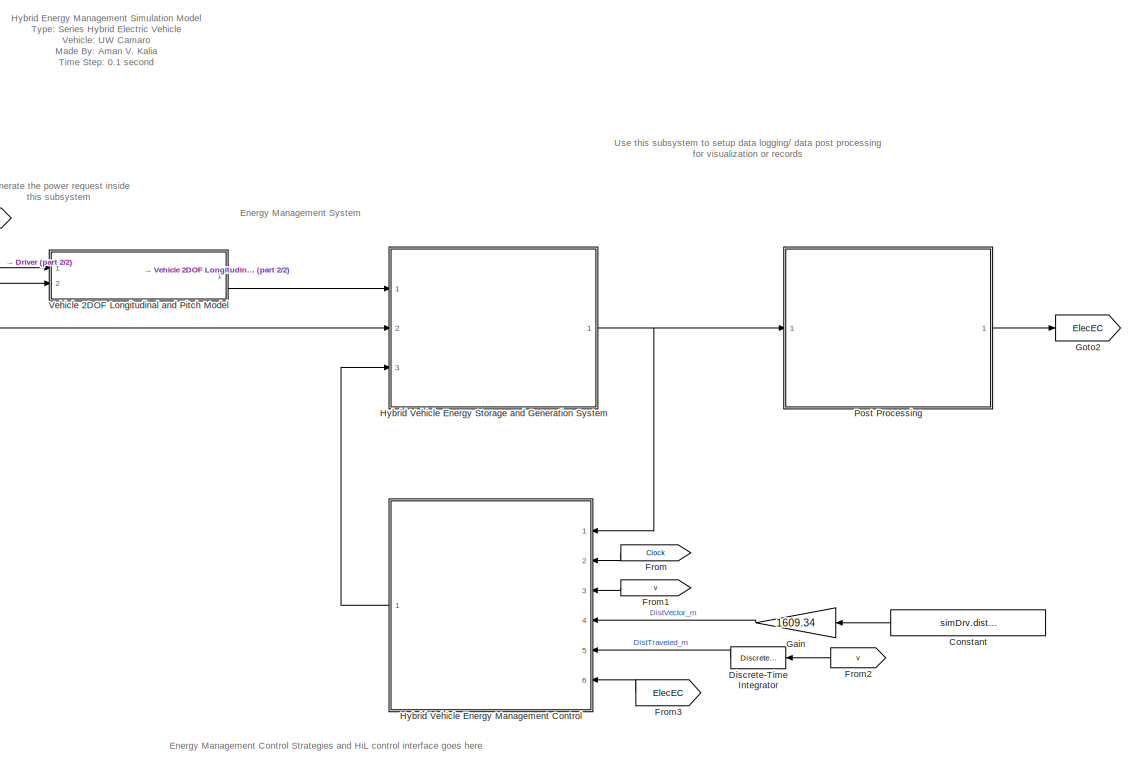
[diagram: root canvas - part 1/2, right side, full height]
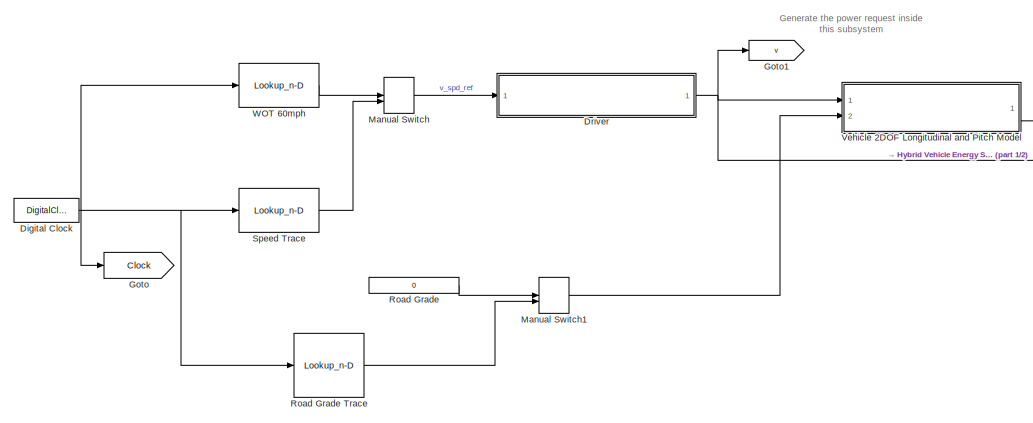
[diagram: root canvas - part 2/2, middle left region]
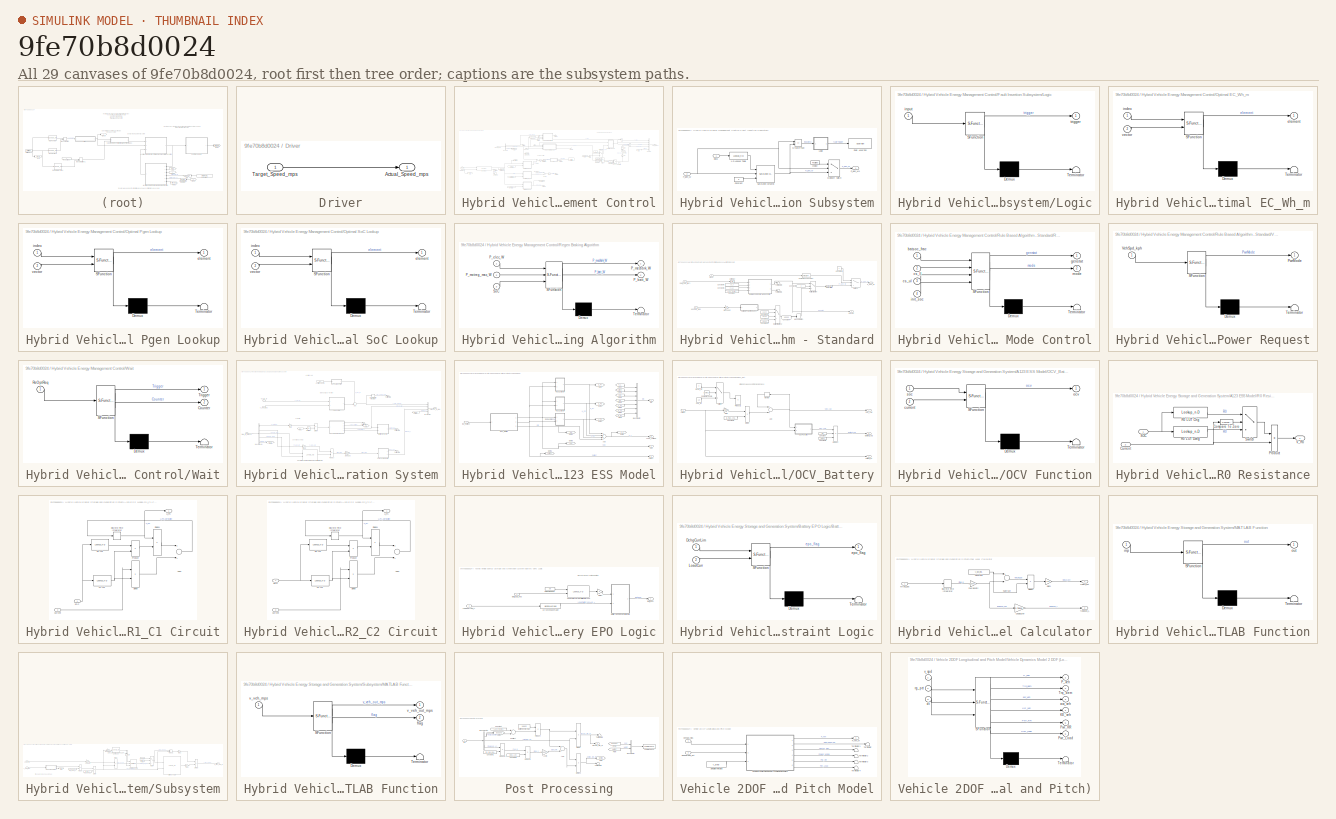
[diagram: thumbnail index - all 29 canvases of the model, root first then tree order]
MODEL slx_9fe70b8d0024
KIND model
CONFIG AbsTol = auto
CONFIG EnableMultiTasking = off
CONFIG FixedStep = t_step
CONFIG MaxStep = auto
CONFIG MinStep = auto
CONFIG RelTol = 1e-3
CONFIG SampleTimeConstraint = Unconstrained
CONFIG Solver = ode2
CONFIG SolverName = ode2
CONFIG StartTime = 0.0
CONFIG StopTime = Inf
BLOCK [Constant] Constant
  Commented = on
  Value = simDrv.dist_mi
BLOCK [DigitalClock] Digital Clock
  SampleTime = t_step
BLOCK [DiscreteIntegrator] Discrete-Time Integrator
  ICPrevOutput = DiscIntNeverNeededParam
  ICPrevScaledInput = DiscIntNeverNeededParam
  InitialConditionSetting = Auto
  Ports = [1, 1]
  SampleTime = t_step
BLOCK [SubSystem] Driver
  Ports = [1, 1]
  RequestExecContextInheritance = off
BLOCK [Outport] Driver/Actual_Speed_mps
  IconDisplay = Port number
BLOCK [Inport] Driver/Target_Speed_mps
  IconDisplay = Port number
BLOCK [From] From
  GotoTag = Clock
BLOCK [From] From1
  GotoTag = v
BLOCK [From] From2
  GotoTag = v
BLOCK [From] From3
  GotoTag = ElecEC
BLOCK [Gain] Gain
  Gain = 1609.34
  OutDataTypeStr = Inherit: Inherit via internal rule
  ParamDataTypeStr = Inherit: Inherit via internal rule
  SaturateOnIntegerOverflow = off
BLOCK [Goto] Goto
  GotoTag = Clock
BLOCK [Goto] Goto1
  GotoTag = v
BLOCK [Goto] Goto2
  GotoTag = ElecEC
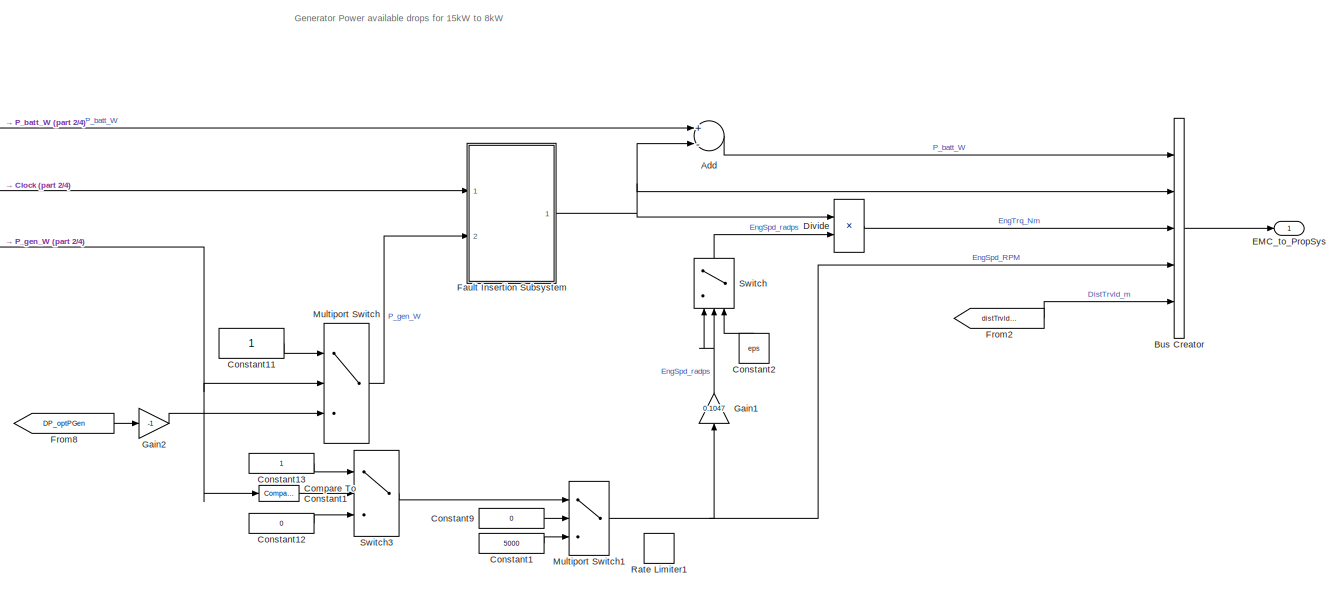
[diagram: Hybrid Vehicle Energy Management Control - part 1/4, top right region]
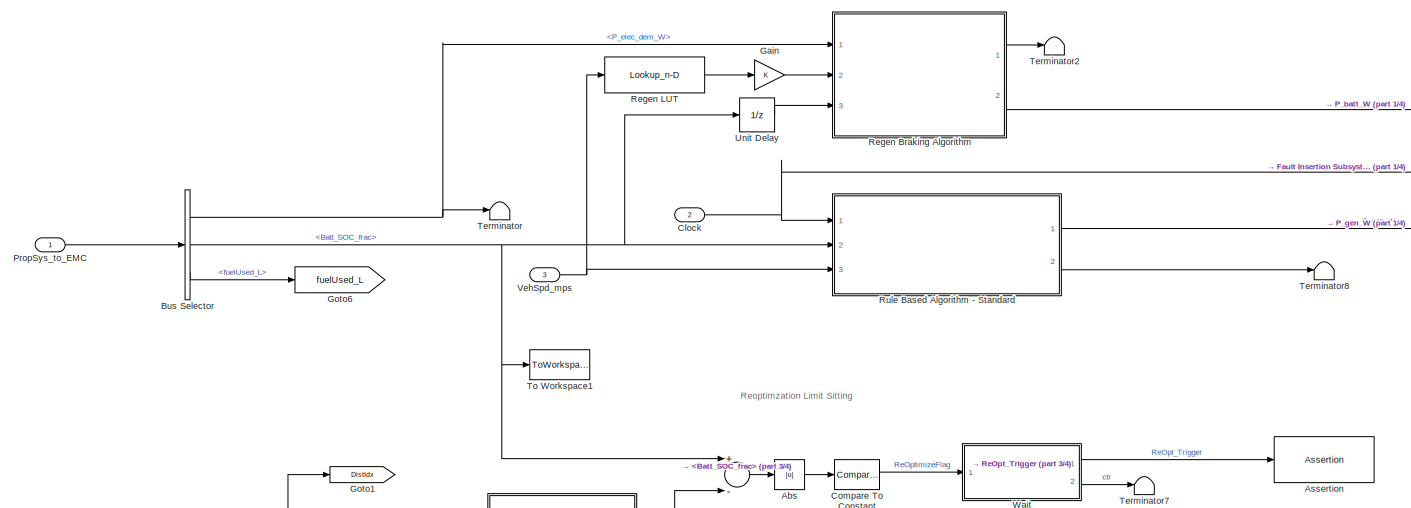
[diagram: Hybrid Vehicle Energy Management Control - part 2/4, top center region]
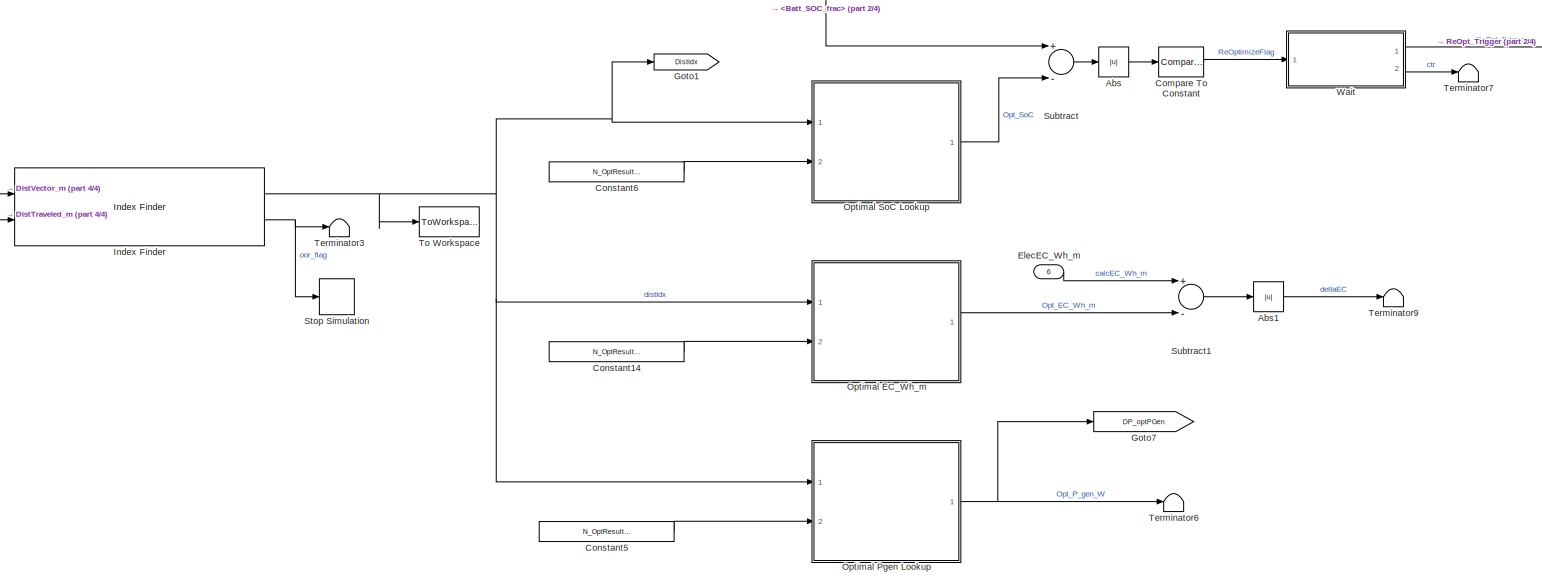
[diagram: Hybrid Vehicle Energy Management Control - part 3/4, bottom left region]
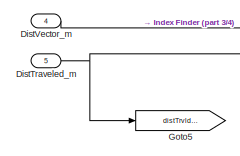
[diagram: Hybrid Vehicle Energy Management Control - part 4/4, middle left region]
BLOCK [SubSystem] Hybrid Vehicle Energy Management Control
  Ports = [6, 1]
  RequestExecContextInheritance = off
BLOCK [Abs] Hybrid Vehicle Energy Management Control/Abs
  Commented = on
  SaturateOnIntegerOverflow = off
BLOCK [Abs] Hybrid Vehicle Energy Management Control/Abs1
  Commented = on
  SaturateOnIntegerOverflow = off
BLOCK [Sum] Hybrid Vehicle Energy Management Control/Add
  InputSameDT = off
  Inputs = +-
  OutDataTypeStr = Inherit: Inherit via internal rule
  Ports = [2, 1]
  SaturateOnIntegerOverflow = off
BLOCK [Assertion] Hybrid Vehicle Energy Management Control/Assertion
  AssertionFailFcn = set_param(bdroot,'SimulationCommand','pause');
  Commented = on
  StopWhenAssertionFail = off
BLOCK [BusCreator] Hybrid Vehicle Energy Management Control/Bus Creator
  DisplayOption = bar
  InheritFromInputs = on
  Inputs = 5
  Ports = [5, 1]
BLOCK [BusSelector] Hybrid Vehicle Energy Management Control/Bus Selector
  OutputAsBus = off
  OutputSignals = P_elec_dem_W,Batt_SOC_frac,fuelUsed_L
  Ports = [1, 3]
BLOCK [Inport] Hybrid Vehicle Energy Management Control/Clock
  IconDisplay = Port number
  Port = 2
BLOCK [Reference] Hybrid Vehicle Energy Management Control/Compare To Constant  REF=simulink/Logic and Bit
Operations/Compare
To Constant
  Commented = on
  Ports = [1, 1]
  SourceBlock = simulink/Logic and Bit\nOperations/Compare\nTo Constant
  SourceProductBaseCode = SL
  SourceProductName = Simulink
  SourceType = Compare To Constant
BLOCK [Reference] Hybrid Vehicle Energy Management Control/Compare To Constant1  REF=simulink/Logic and Bit
Operations/Compare
To Constant
  Ports = [1, 1]
  SourceBlock = simulink/Logic and Bit\nOperations/Compare\nTo Constant
  SourceProductBaseCode = SL
  SourceProductName = Simulink
  SourceType = Compare To Constant
BLOCK [Constant] Hybrid Vehicle Energy Management Control/Constant1
  Value = 5000
BLOCK [Constant] Hybrid Vehicle Energy Management Control/Constant11
BLOCK [Constant] Hybrid Vehicle Energy Management Control/Constant12
  Value = 0
BLOCK [Constant] Hybrid Vehicle Energy Management Control/Constant13
BLOCK [Constant] Hybrid Vehicle Energy Management Control/Constant14
  Commented = on
  Value = N_OptResults.EC_Wh_m
BLOCK [Constant] Hybrid Vehicle Energy Management Control/Constant2
  Value = eps
BLOCK [Constant] Hybrid Vehicle Energy Management Control/Constant5
  Commented = on
  Value = N_OptResults.optPgen_W
BLOCK [Constant] Hybrid Vehicle Energy Management Control/Constant6
  Commented = on
  Value = N_OptResults.optSOC_pct
BLOCK [Constant] Hybrid Vehicle Energy Management Control/Constant9
  Value = 0
BLOCK [Inport] Hybrid Vehicle Energy Management Control/DistTraveled_m
  IconDisplay = Port number
  Port = 5
BLOCK [Inport] Hybrid Vehicle Energy Management Control/DistVector_m
  IconDisplay = Port number
  Port = 4
BLOCK [Product] Hybrid Vehicle Energy Management Control/Divide
  InputSameDT = off
  Inputs = */
  OutDataTypeStr = Inherit: Inherit via internal rule
  Ports = [2, 1]
  RndMeth = Floor
  SaturateOnIntegerOverflow = off
BLOCK [Outport] Hybrid Vehicle Energy Management Control/EMC_to_PropSys
  IconDisplay = Port number
BLOCK [Inport] Hybrid Vehicle Energy Management Control/ElecEC_Wh_m
  IconDisplay = Port number
  Port = 6
BLOCK [SubSystem] Hybrid Vehicle Energy Management Control/Fault Insertion Subsystem
  Ports = [2, 1]
  RequestExecContextInheritance = off
BLOCK [Lookup_n-D] Hybrid Vehicle Energy Management Control/Fault Insertion Subsystem/1-D Lookup Table
  BreakpointsForDimension1 = [0,1200,1210,simDrv.time_s(end)]
  InternalRulePriority = Speed
  NumberOfTableDimensions = 1
  Ports = [1, 1]
  RndMeth = Simplest
  Table = [15000,15000,8000,8000]
BLOCK [Inport] Hybrid Vehicle Energy Management Control/Fault Insertion Subsystem/Clock
  IconDisplay = Port number
BLOCK [Constant] Hybrid Vehicle Energy Management Control/Fault Insertion Subsystem/Constant
  Value = 0
BLOCK [Assertion] Hybrid Vehicle Energy Management Control/Fault Insertion Subsystem/Fault Assertion
  AssertionFailFcn = set_param(bdroot,'SimulationCommand','pause');\ndisp('## Paused due to fault insertion')
  Commented = on
  StopWhenAssertionFail = off
BLOCK [RelationalOperator] Hybrid Vehicle Energy Management Control/Fault Insertion Subsystem/GreaterThan
  InputSameDT = off
  Operator = ==
  OutDataTypeStr = boolean
  Ports = [2, 1]
  RndMeth = Simplest
BLOCK [SubSystem] Hybrid Vehicle Energy Management Control/Fault Insertion Subsystem/Logic
  ErrorFcn = Stateflow.Translate.translate
  PermitHierarchicalResolution = ExplicitOnly
  Ports = [1, 1]
  RequestExecContextInheritance = off
  SFBlockType = Chart
  TreatAsAtomicUnit = on
BLOCK [Demux] Hybrid Vehicle Energy Management Control/Fault Insertion Subsystem/Logic/ Demux 
  Outputs = 1
  Ports = [1, 1]
BLOCK [S-Function] Hybrid Vehicle Energy Management Control/Fault Insertion Subsystem/Logic/ SFunction 
  EnableBusSupport = on
  FunctionName = sf_sfun
  PortCounts = [1 2]
  Ports = [1, 2]
  SFcnIsStateOwnerBlock = off
  SFunctionDeploymentMode = off
  Tag = Stateflow S-Function SHEV_Camaro_PwrLossMdl 10
BLOCK [Terminator] Hybrid Vehicle Energy Management Control/Fault Insertion Subsystem/Logic/ Terminator 
BLOCK [Inport] Hybrid Vehicle Energy Management Control/Fault Insertion Subsystem/Logic/input
  IconDisplay = Port number
BLOCK [Outport] Hybrid Vehicle Energy Management Control/Fault Insertion Subsystem/Logic/trigger
  IconDisplay = Port number
BLOCK [MultiPortSwitch] Hybrid Vehicle Energy Management Control/Fault Insertion Subsystem/Multiport Switch
  DataPortOrder = Zero-based contiguous
  InputSameDT = off
  Inputs = 2
  Ports = [3, 1]
  SaturateOnIntegerOverflow = off
  zeroidx = on
BLOCK [Inport] Hybrid Vehicle Energy Management Control/Fault Insertion Subsystem/P_gen_W
  IconDisplay = Port number
  Port = 2
BLOCK [Outport] Hybrid Vehicle Energy Management Control/Fault Insertion Subsystem/P_gen_W1
  IconDisplay = Port number
BLOCK [Reference] Hybrid Vehicle Energy Management Control/Fault Insertion Subsystem/Saturation Dynamic  REF=simulink/Discontinuities/Saturation
Dynamic
  Ports = [3, 1]
  SourceBlock = simulink/Discontinuities/Saturation\nDynamic
  SourceProductBaseCode = SL
  SourceProductName = Simulink
  SourceType = Saturation Dynamic
BLOCK [Constant] Hybrid Vehicle Energy Management Control/Fault Insertion Subsystem/choice
  Value = FaultDec
BLOCK [From] Hybrid Vehicle Energy Management Control/From2
  GotoTag = distTrvld_m
BLOCK [From] Hybrid Vehicle Energy Management Control/From8
  GotoTag = DP_optPGen
BLOCK [Gain] Hybrid Vehicle Energy Management Control/Gain
  OutDataTypeStr = Inherit: Inherit via internal rule
  ParamDataTypeStr = Inherit: Inherit via internal rule
  SaturateOnIntegerOverflow = off
BLOCK [Gain] Hybrid Vehicle Energy Management Control/Gain1
  Gain = 0.1047
  OutDataTypeStr = Inherit: Inherit via internal rule
  ParamDataTypeStr = Inherit: Inherit via internal rule
  SaturateOnIntegerOverflow = off
BLOCK [Gain] Hybrid Vehicle Energy Management Control/Gain2
  Gain = -1
  OutDataTypeStr = Inherit: Inherit via internal rule
  ParamDataTypeStr = Inherit: Inherit via internal rule
  SaturateOnIntegerOverflow = off
BLOCK [Goto] Hybrid Vehicle Energy Management Control/Goto1
  Commented = on
  GotoTag = DistIdx
BLOCK [Goto] Hybrid Vehicle Energy Management Control/Goto5
  GotoTag = distTrvld_m
BLOCK [Goto] Hybrid Vehicle Energy Management Control/Goto6
  GotoTag = fuelUsed_L
BLOCK [Goto] Hybrid Vehicle Energy Management Control/Goto7
  Commented = on
  GotoTag = DP_optPGen
BLOCK [Reference] Hybrid Vehicle Energy Management Control/Index Finder  REF=custom_func/Index Finder
  Commented = on
  Ports = [2, 2]
  SourceBlock = custom_func/Index Finder
  SourceType = SubSystem
BLOCK [MultiPortSwitch] Hybrid Vehicle Energy Management Control/Multiport Switch
  InputSameDT = off
  Inputs = 2
  Ports = [3, 1]
  SaturateOnIntegerOverflow = off
BLOCK [MultiPortSwitch] Hybrid Vehicle Energy Management Control/Multiport Switch1
  DataPortOrder = Zero-based contiguous
  InputSameDT = off
  Inputs = 2
  Ports = [3, 1]
  SaturateOnIntegerOverflow = off
  zeroidx = on
BLOCK [SubSystem] Hybrid Vehicle Energy Management Control/Optimal EC_Wh_m
  Commented = on
  ErrorFcn = Stateflow.Translate.translate
  PermitHierarchicalResolution = ExplicitOnly
  Ports = [2, 1]
  RequestExecContextInheritance = off
  SFBlockType = MATLAB Function
  TreatAsAtomicUnit = on
BLOCK [Demux] Hybrid Vehicle Energy Management Control/Optimal EC_Wh_m/ Demux 
  Outputs = 1
  Ports = [1, 1]
BLOCK [S-Function] Hybrid Vehicle Energy Management Control/Optimal EC_Wh_m/ SFunction 
  EnableBusSupport = on
  FunctionName = sf_sfun
  PortCounts = [2 2]
  Ports = [2, 2]
  SFcnIsStateOwnerBlock = off
  SFunctionDeploymentMode = off
  Tag = Stateflow S-Function SHEV_Camaro_PwrLossMdl 13
BLOCK [Terminator] Hybrid Vehicle Energy Management Control/Optimal EC_Wh_m/ Terminator 
BLOCK [Outport] Hybrid Vehicle Energy Management Control/Optimal EC_Wh_m/element
  IconDisplay = Port number
BLOCK [Inport] Hybrid Vehicle Energy Management Control/Optimal EC_Wh_m/index
  IconDisplay = Port number
BLOCK [Inport] Hybrid Vehicle Energy Management Control/Optimal EC_Wh_m/vector
  IconDisplay = Port number
  Port = 2
BLOCK [SubSystem] Hybrid Vehicle Energy Management Control/Optimal Pgen Lookup
  Commented = on
  ErrorFcn = Stateflow.Translate.translate
  PermitHierarchicalResolution = ExplicitOnly
  Ports = [2, 1]
  RequestExecContextInheritance = off
  SFBlockType = MATLAB Function
  TreatAsAtomicUnit = on
BLOCK [Demux] Hybrid Vehicle Energy Management Control/Optimal Pgen Lookup/ Demux 
  Outputs = 1
  Ports = [1, 1]
BLOCK [S-Function] Hybrid Vehicle Energy Management Control/Optimal Pgen Lookup/ SFunction 
  EnableBusSupport = on
  FunctionName = sf_sfun
  PortCounts = [2 2]
  Ports = [2, 2]
  SFcnIsStateOwnerBlock = off
  SFunctionDeploymentMode = off
  Tag = Stateflow S-Function SHEV_Camaro_PwrLossMdl 11
BLOCK [Terminator] Hybrid Vehicle Energy Management Control/Optimal Pgen Lookup/ Terminator 
BLOCK [Outport] Hybrid Vehicle Energy Management Control/Optimal Pgen Lookup/element
  IconDisplay = Port number
BLOCK [Inport] Hybrid Vehicle Energy Management Control/Optimal Pgen Lookup/index
  IconDisplay = Port number
BLOCK [Inport] Hybrid Vehicle Energy Management Control/Optimal Pgen Lookup/vector
  IconDisplay = Port number
  Port = 2
BLOCK [SubSystem] Hybrid Vehicle Energy Management Control/Optimal SoC Lookup
  Commented = on
  ErrorFcn = Stateflow.Translate.translate
  PermitHierarchicalResolution = ExplicitOnly
  Ports = [2, 1]
  RequestExecContextInheritance = off
  SFBlockType = MATLAB Function
  TreatAsAtomicUnit = on
BLOCK [Demux] Hybrid Vehicle Energy Management Control/Optimal SoC Lookup/ Demux 
  Outputs = 1
  Ports = [1, 1]
BLOCK [S-Function] Hybrid Vehicle Energy Management Control/Optimal SoC Lookup/ SFunction 
  EnableBusSupport = on
  FunctionName = sf_sfun
  PortCounts = [2 2]
  Ports = [2, 2]
  SFcnIsStateOwnerBlock = off
  SFunctionDeploymentMode = off
  Tag = Stateflow S-Function SHEV_Camaro_PwrLossMdl 12
BLOCK [Terminator] Hybrid Vehicle Energy Management Control/Optimal SoC Lookup/ Terminator 
BLOCK [Outport] Hybrid Vehicle Energy Management Control/Optimal SoC Lookup/element
  IconDisplay = Port number
BLOCK [Inport] Hybrid Vehicle Energy Management Control/Optimal SoC Lookup/index
  IconDisplay = Port number
BLOCK [Inport] Hybrid Vehicle Energy Management Control/Optimal SoC Lookup/vector
  IconDisplay = Port number
  Port = 2
BLOCK [Inport] Hybrid Vehicle Energy Management Control/PropSys_to_EMC
  IconDisplay = Port number
BLOCK [RateLimiter] Hybrid Vehicle Energy Management Control/Rate Limiter1
  Commented = on
  FallingSlewLimit = -1000
  RisingSlewLimit = 75
  SampleTimeMode = inherited
BLOCK [SubSystem] Hybrid Vehicle Energy Management Control/Regen Braking Algorithm
  ErrorFcn = Stateflow.Translate.translate
  PermitHierarchicalResolution = ExplicitOnly
  Ports = [3, 2]
  RequestExecContextInheritance = off
  SFBlockType = Chart
  TreatAsAtomicUnit = on
BLOCK [Demux] Hybrid Vehicle Energy Management Control/Regen Braking Algorithm/ Demux 
  Outputs = 1
  Ports = [1, 1]
BLOCK [S-Function] Hybrid Vehicle Energy Management Control/Regen Braking Algorithm/ SFunction 
  EnableBusSupport = on
  FunctionName = sf_sfun
  PortCounts = [3 3]
  Ports = [3, 3]
  SFcnIsStateOwnerBlock = off
  SFunctionDeploymentMode = off
  Tag = Stateflow S-Function SHEV_Camaro_PwrLossMdl 4
BLOCK [Terminator] Hybrid Vehicle Energy Management Control/Regen Braking Algorithm/ Terminator 
BLOCK [Outport] Hybrid Vehicle Energy Management Control/Regen Braking Algorithm/P_batt_W
  IconDisplay = Port number
  Port = 2
BLOCK [Inport] Hybrid Vehicle Energy Management Control/Regen Braking Algorithm/P_elec_W
  IconDisplay = Port number
BLOCK [Outport] Hybrid Vehicle Energy Management Control/Regen Braking Algorithm/P_mechbrk_W
  IconDisplay = Port number
BLOCK [Inport] Hybrid Vehicle Energy Management Control/Regen Braking Algorithm/P_motreg_max_W
  IconDisplay = Port number
  Port = 2
BLOCK [Inport] Hybrid Vehicle Energy Management Control/Regen Braking Algorithm/SoC
  IconDisplay = Port number
  Port = 3
BLOCK [Lookup_n-D] Hybrid Vehicle Energy Management Control/Regen LUT
  BreakpointsForDimension1 = [0 2.6 5.2 7.8 10.4 13 15.6 18.2 20.8 23.4 26 28.6 31.2 33.8 38]
  InternalRulePriority = Speed
  NumberOfTableDimensions = 1
  Ports = [1, 1]
  RndMeth = Simplest
  Table = [0 0 -1250 -3000 -5500 -8000 -10250 -12500 -13750 -14000 -14500 -15000 -15000 -15000 -15000]
BLOCK [SubSystem] Hybrid Vehicle Energy Management Control/Rule Based Algorithm - Standard
  Ports = [3, 2]
  RequestExecContextInheritance = off
BLOCK [Inport] Hybrid Vehicle Energy Management Control/Rule Based Algorithm - Standard/<Batt_SOC_frac>
  IconDisplay = Port number
  Port = 2
BLOCK [Inport] Hybrid Vehicle Energy Management Control/Rule Based Algorithm - Standard/Clock
  IconDisplay = Port number
BLOCK [Reference] Hybrid Vehicle Energy Management Control/Rule Based Algorithm - Standard/Compare To Constant  REF=simulink/Logic and Bit
Operations/Compare
To Constant
  Ports = [1, 1]
  SourceBlock = simulink/Logic and Bit\nOperations/Compare\nTo Constant
  SourceProductBaseCode = SL
  SourceProductName = Simulink
  SourceType = Compare To Constant
BLOCK [Constant] Hybrid Vehicle Energy Management Control/Rule Based Algorithm - Standard/Constant
  Value = A123_ESS.Init_soc
BLOCK [Constant] Hybrid Vehicle Energy Management Control/Rule Based Algorithm - Standard/Constant10
  Value = 11500
BLOCK [Constant] Hybrid Vehicle Energy Management Control/Rule Based Algorithm - Standard/Constant11
  Value = 13000
BLOCK [Constant] Hybrid Vehicle Energy Management Control/Rule Based Algorithm - Standard/Constant12
  Value = 15500
BLOCK [Constant] Hybrid Vehicle Energy Management Control/Rule Based Algorithm - Standard/Constant3
  Value = 0
BLOCK [Constant] Hybrid Vehicle Energy Management Control/Rule Based Algorithm - Standard/Constant5
  Value = cs_ul
BLOCK [Constant] Hybrid Vehicle Energy Management Control/Rule Based Algorithm - Standard/Constant6
  Value = cs_ll
BLOCK [Constant] Hybrid Vehicle Energy Management Control/Rule Based Algorithm - Standard/Constant7
  Value = 15000
BLOCK [Constant] Hybrid Vehicle Energy Management Control/Rule Based Algorithm - Standard/Constant8
  Value = 0
BLOCK [ManualSwitch] Hybrid Vehicle Energy Management Control/Rule Based Algorithm - Standard/Manual Switch
  CurrentSetting = 0
BLOCK [MultiPortSwitch] Hybrid Vehicle Energy Management Control/Rule Based Algorithm - Standard/Multiport Switch
  DataPortOrder = Zero-based contiguous
  InputSameDT = off
  Inputs = 2
  Ports = [3, 1]
  SaturateOnIntegerOverflow = off
  zeroidx = on
BLOCK [MultiPortSwitch] Hybrid Vehicle Energy Management Control/Rule Based Algorithm - Standard/Multiport Switch2
  DataPortOrder = Zero-based contiguous
  InputSameDT = off
  Ports = [4, 1]
  SaturateOnIntegerOverflow = off
  zeroidx = on
BLOCK [Outport] Hybrid Vehicle Energy Management Control/Rule Based Algorithm - Standard/P_gen_W
  IconDisplay = Port number
BLOCK [RateLimiter] Hybrid Vehicle Energy Management Control/Rule Based Algorithm - Standard/Rate Limiter
  FallingSlewLimit = -4500
  RisingSlewLimit = 250
  SampleTimeMode = inherited
BLOCK [SubSystem] Hybrid Vehicle Energy Management Control/Rule Based Algorithm - Standard/Rule-Based Energy Mode Control
  ErrorFcn = Stateflow.Translate.translate
  PermitHierarchicalResolution = ExplicitOnly
  Ports = [4, 2]
  RequestExecContextInheritance = off
  SFBlockType = Chart
  TreatAsAtomicUnit = on
BLOCK [Demux] Hybrid Vehicle Energy Management Control/Rule Based Algorithm - Standard/Rule-Based Energy Mode Control/ Demux 
  Outputs = 1
  Ports = [1, 1]
BLOCK [S-Function] Hybrid Vehicle Energy Management Control/Rule Based Algorithm - Standard/Rule-Based Energy Mode Control/ SFunction 
  EnableBusSupport = on
  FunctionName = sf_sfun
  PortCounts = [4 3]
  Ports = [4, 3]
  SFcnIsStateOwnerBlock = off
  SFunctionDeploymentMode = off
  Tag = Stateflow S-Function SHEV_Camaro_PwrLossMdl 6
BLOCK [Terminator] Hybrid Vehicle Energy Management Control/Rule Based Algorithm - Standard/Rule-Based Energy Mode Control/ Terminator 
BLOCK [Inport] Hybrid Vehicle Energy Management Control/Rule Based Algorithm - Standard/Rule-Based Energy Mode Control/batsoc_frac
  IconDisplay = Port number
BLOCK [Inport] Hybrid Vehicle Energy Management Control/Rule Based Algorithm - Standard/Rule-Based Energy Mode Control/cs_ll
  IconDisplay = Port number
  Port = 2
BLOCK [Inport] Hybrid Vehicle Energy Management Control/Rule Based Algorithm - Standard/Rule-Based Energy Mode Control/cs_ul
  IconDisplay = Port number
  Port = 3
BLOCK [Outport] Hybrid Vehicle Energy Management Control/Rule Based Algorithm - Standard/Rule-Based Energy Mode Control/genstat
  IconDisplay = Port number
BLOCK [Inport] Hybrid Vehicle Energy Management Control/Rule Based Algorithm - Standard/Rule-Based Energy Mode Control/init_soc
  IconDisplay = Port number
  Port = 4
BLOCK [Outport] Hybrid Vehicle Energy Management Control/Rule Based Algorithm - Standard/Rule-Based Energy Mode Control/mode
  IconDisplay = Port number
  Port = 2
BLOCK [Switch] Hybrid Vehicle Energy Management Control/Rule Based Algorithm - Standard/Switch1
  Criteria = u2 > Threshold
  InputSameDT = off
  SaturateOnIntegerOverflow = off
BLOCK [Terminator] Hybrid Vehicle Energy Management Control/Rule Based Algorithm - Standard/Terminator1
BLOCK [Terminator] Hybrid Vehicle Energy Management Control/Rule Based Algorithm - Standard/Terminator3
BLOCK [UnitDelay] Hybrid Vehicle Energy Management Control/Rule Based Algorithm - Standard/Unit Delay
  InputProcessing = Elements as channels (sample based)
  SampleTime = -1
BLOCK [SubSystem] Hybrid Vehicle Energy Management Control/Rule Based Algorithm - Standard/Variable Power Request
  ErrorFcn = Stateflow.Translate.translate
  PermitHierarchicalResolution = ExplicitOnly
  Ports = [1, 1]
  RequestExecContextInheritance = off
  SFBlockType = MATLAB Function
  TreatAsAtomicUnit = on
BLOCK [Demux] Hybrid Vehicle Energy Management Control/Rule Based Algorithm - Standard/Variable Power Request/ Demux 
  Outputs = 1
  Ports = [1, 1]
BLOCK [S-Function] Hybrid Vehicle Energy Management Control/Rule Based Algorithm - Standard/Variable Power Request/ SFunction 
  EnableBusSupport = on
  FunctionName = sf_sfun
  PortCounts = [1 2]
  Ports = [1, 2]
  SFcnIsStateOwnerBlock = off
  SFunctionDeploymentMode = off
  Tag = Stateflow S-Function SHEV_Camaro_PwrLossMdl 7
BLOCK [Terminator] Hybrid Vehicle Energy Management Control/Rule Based Algorithm - Standard/Variable Power Request/ Terminator 
BLOCK [Outport] Hybrid Vehicle Energy Management Control/Rule Based Algorithm - Standard/Variable Power Request/PwrMode
  IconDisplay = Port number
BLOCK [Inport] Hybrid Vehicle Energy Management Control/Rule Based Algorithm - Standard/Variable Power Request/VehSpd_kph
  IconDisplay = Port number
BLOCK [Inport] Hybrid Vehicle Energy Management Control/Rule Based Algorithm - Standard/VehSpd_mps
  IconDisplay = Port number
  Port = 3
BLOCK [Outport] Hybrid Vehicle Energy Management Control/Rule Based Algorithm - Standard/genstat
  IconDisplay = Port number
  Port = 2
BLOCK [Gain] Hybrid Vehicle Energy Management Control/Rule Based Algorithm - Standard/mps2kph
  Gain = 3.6
  OutDataTypeStr = Inherit: Inherit via internal rule
  ParamDataTypeStr = Inherit: Inherit via internal rule
  SaturateOnIntegerOverflow = off
BLOCK [Stop] Hybrid Vehicle Energy Management Control/Stop Simulation
  Commented = on
BLOCK [Sum] Hybrid Vehicle Energy Management Control/Subtract
  Commented = on
  InputSameDT = off
  Inputs = +-
  OutDataTypeStr = Inherit: Inherit via internal rule
  Ports = [2, 1]
  SaturateOnIntegerOverflow = off
BLOCK [Sum] Hybrid Vehicle Energy Management Control/Subtract1
  Commented = on
  InputSameDT = off
  Inputs = +-
  OutDataTypeStr = Inherit: Inherit via internal rule
  Ports = [2, 1]
  SaturateOnIntegerOverflow = off
BLOCK [Switch] Hybrid Vehicle Energy Management Control/Switch
  Criteria = u2 > Threshold
  InputSameDT = off
  SaturateOnIntegerOverflow = off
BLOCK [Switch] Hybrid Vehicle Energy Management Control/Switch3
  Criteria = u2 > Threshold
  InputSameDT = off
  SaturateOnIntegerOverflow = off
BLOCK [Terminator] Hybrid Vehicle Energy Management Control/Terminator
BLOCK [Terminator] Hybrid Vehicle Energy Management Control/Terminator2
BLOCK [Terminator] Hybrid Vehicle Energy Management Control/Terminator3
  Commented = on
BLOCK [Terminator] Hybrid Vehicle Energy Management Control/Terminator6
  Commented = on
BLOCK [Terminator] Hybrid Vehicle Energy Management Control/Terminator7
  Commented = on
BLOCK [Terminator] Hybrid Vehicle Energy Management Control/Terminator8
BLOCK [Terminator] Hybrid Vehicle Energy Management Control/Terminator9
  Commented = on
BLOCK [ToWorkspace] Hybrid Vehicle Energy Management Control/To Workspace
  Commented = on
  FixptAsFi = on
  MaxDataPoints = inf
  Ports = [1]
  SampleTime = 1
  Save2DSignal = 2-D array (concatenate along first dimension)
  SaveFormat = Timeseries
  VariableName = simidx
BLOCK [ToWorkspace] Hybrid Vehicle Energy Management Control/To Workspace1
  FixptAsFi = on
  MaxDataPoints = inf
  Ports = [1]
  SampleTime = 1
  Save2DSignal = 3-D array (concatenate along third dimension)
  SaveFormat = Timeseries
  VariableName = simbattSOC
BLOCK [UnitDelay] Hybrid Vehicle Energy Management Control/Unit Delay
  InputProcessing = Elements as channels (sample based)
  SampleTime = -1
BLOCK [Inport] Hybrid Vehicle Energy Management Control/VehSpd_mps
  IconDisplay = Port number
  Port = 3
BLOCK [SubSystem] Hybrid Vehicle Energy Management Control/Wait
  Commented = on
  ErrorFcn = Stateflow.Translate.translate
  PermitHierarchicalResolution = ExplicitOnly
  Ports = [1, 2]
  RequestExecContextInheritance = off
  SFBlockType = Chart
  TreatAsAtomicUnit = on
BLOCK [Demux] Hybrid Vehicle Energy Management Control/Wait/ Demux 
  Outputs = 1
  Ports = [1, 1]
BLOCK [S-Function] Hybrid Vehicle Energy Management Control/Wait/ SFunction 
  EnableBusSupport = on
  FunctionName = sf_sfun
  PortCounts = [1 3]
  Ports = [1, 3]
  SFcnIsStateOwnerBlock = off
  SFunctionDeploymentMode = off
  Tag = Stateflow S-Function SHEV_Camaro_PwrLossMdl 9
BLOCK [Terminator] Hybrid Vehicle Energy Management Control/Wait/ Terminator 
BLOCK [Outport] Hybrid Vehicle Energy Management Control/Wait/Counter
  IconDisplay = Port number
  Port = 2
BLOCK [Inport] Hybrid Vehicle Energy Management Control/Wait/ReOptReq
  IconDisplay = Port number
BLOCK [Outport] Hybrid Vehicle Energy Management Control/Wait/Trigger
  IconDisplay = Port number
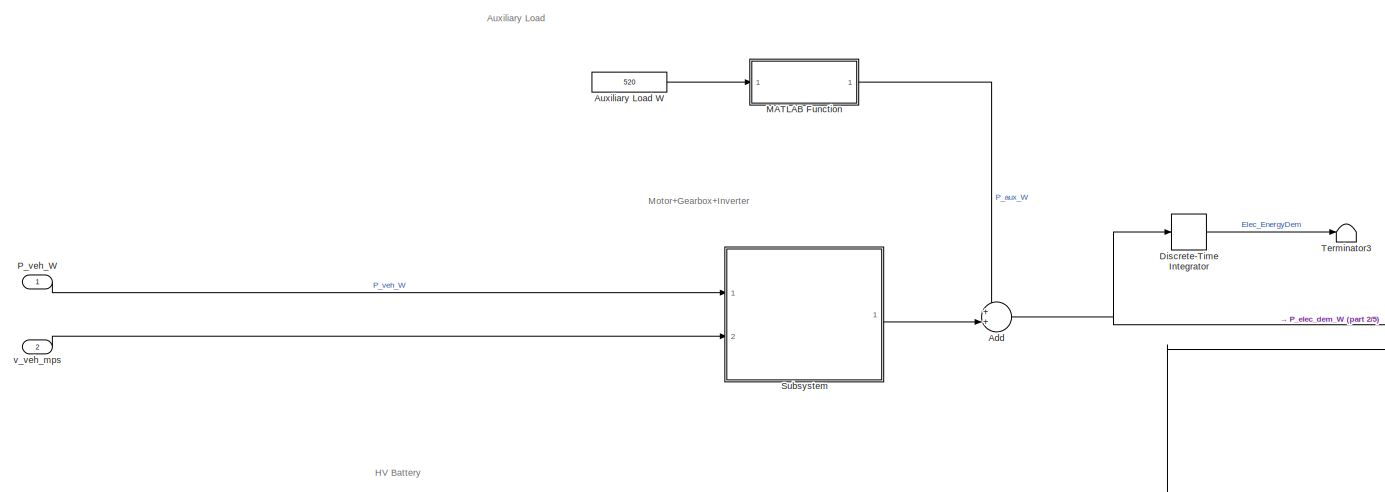
[diagram: Hybrid Vehicle Energy Storage and Generation System - part 1/5, top center region]
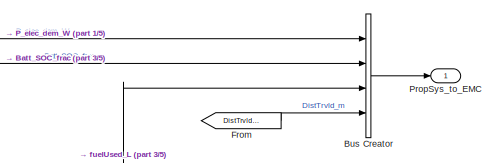
[diagram: Hybrid Vehicle Energy Storage and Generation System - part 2/5, middle right region]
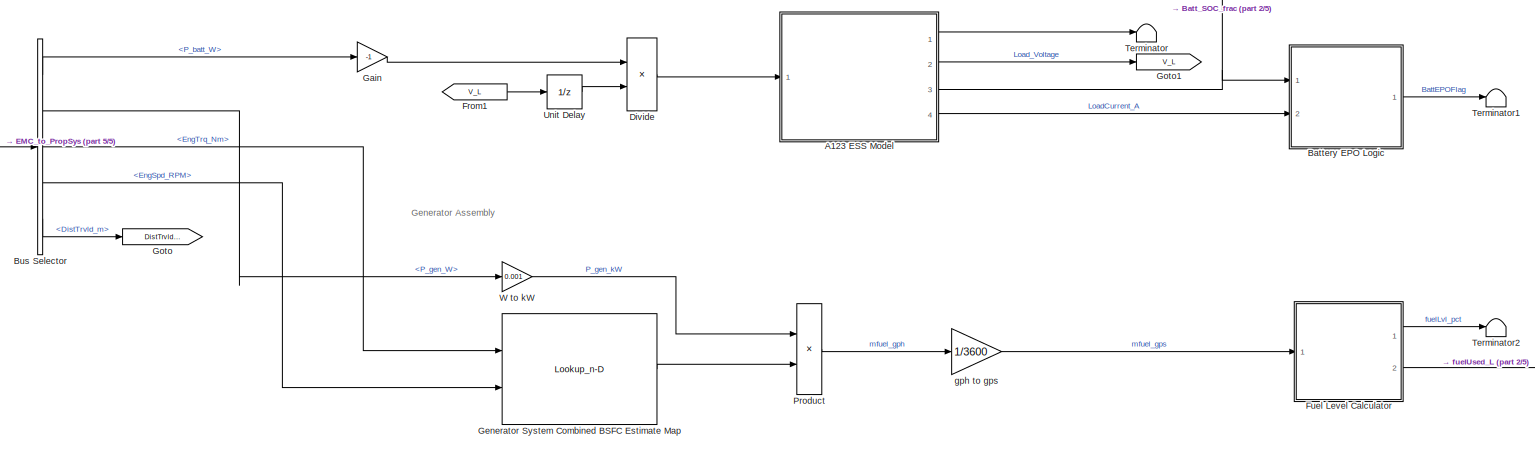
[diagram: Hybrid Vehicle Energy Storage and Generation System - part 3/5, full width, bottom band]
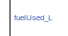
[diagram: Hybrid Vehicle Energy Storage and Generation System - part 4/5, middle right region]
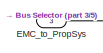
[diagram: Hybrid Vehicle Energy Storage and Generation System - part 5/5, bottom left region]
BLOCK [SubSystem] Hybrid Vehicle Energy Storage and Generation System
  Ports = [3, 1]
  RequestExecContextInheritance = off
BLOCK [SubSystem] Hybrid Vehicle Energy Storage and Generation System/A123 ESS Model
  AncestorBlock = lib_ESS/A123 ESS Model
  Ports = [1, 4]
  RequestExecContextInheritance = off
BLOCK [Sum] Hybrid Vehicle Energy Storage and Generation System/A123 ESS Model/Add
  InputSameDT = off
  Inputs = ++++
  OutDataTypeStr = Inherit: Inherit via internal rule
  Ports = [4, 1]
  SaturateOnIntegerOverflow = off
BLOCK [BusCreator] Hybrid Vehicle Energy Storage and Generation System/A123 ESS Model/Bus Creator
  DisplayOption = bar
  InheritFromInputs = on
  Inputs = 7
  Ports = [7, 1]
BLOCK [Outport] Hybrid Vehicle Energy Storage and Generation System/A123 ESS Model/Current
  IconDisplay = Port number
  Port = 4
BLOCK [From] Hybrid Vehicle Energy Storage and Generation System/A123 ESS Model/From
  GotoTag = U_PA
BLOCK [From] Hybrid Vehicle Energy Storage and Generation System/A123 ESS Model/From1
  GotoTag = U_PC
BLOCK [From] Hybrid Vehicle Energy Storage and Generation System/A123 ESS Model/From2
  GotoTag = V_R0
BLOCK [From] Hybrid Vehicle Energy Storage and Generation System/A123 ESS Model/From3
  GotoTag = Em
BLOCK [From] Hybrid Vehicle Energy Storage and Generation System/A123 ESS Model/From4
  GotoTag = V_L
BLOCK [From] Hybrid Vehicle Energy Storage and Generation System/A123 ESS Model/From5
  GotoTag = SOC
BLOCK [From] Hybrid Vehicle Energy Storage and Generation System/A123 ESS Model/From6
  GotoTag = current
BLOCK [Goto] Hybrid Vehicle Energy Storage and Generation System/A123 ESS Model/Goto
  GotoTag = U_PA
BLOCK [Goto] Hybrid Vehicle Energy Storage and Generation System/A123 ESS Model/Goto1
  GotoTag = U_PC
BLOCK [Goto] Hybrid Vehicle Energy Storage and Generation System/A123 ESS Model/Goto2
  GotoTag = V_R0
BLOCK [Goto] Hybrid Vehicle Energy Storage and Generation System/A123 ESS Model/Goto3
  GotoTag = V_L
BLOCK [Goto] Hybrid Vehicle Energy Storage and Generation System/A123 ESS Model/Goto4
  GotoTag = Em
BLOCK [Goto] Hybrid Vehicle Energy Storage and Generation System/A123 ESS Model/Goto5
  GotoTag = SOC
BLOCK [Goto] Hybrid Vehicle Energy Storage and Generation System/A123 ESS Model/Goto6
  GotoTag = current
BLOCK [Outport] Hybrid Vehicle Energy Storage and Generation System/A123 ESS Model/Info
  IconDisplay = Port number
BLOCK [Inport] Hybrid Vehicle Energy Storage and Generation System/A123 ESS Model/Inp_Current
  IconDisplay = Port number
BLOCK [Outport] Hybrid Vehicle Energy Storage and Generation System/A123 ESS Model/Load_Voltage
  IconDisplay = Port number
  Port = 2
BLOCK [SubSystem] Hybrid Vehicle Energy Storage and Generation System/A123 ESS Model/OCV_Battery
  Ports = [1, 3]
  RequestExecContextInheritance = off
BLOCK [Sum] Hybrid Vehicle Energy Storage and Generation System/A123 ESS Model/OCV_Battery/Add
  InputSameDT = off
  OutDataTypeStr = Inherit: Inherit via internal rule
  Ports = [2, 1]
  SaturateOnIntegerOverflow = off
BLOCK [Outport] Hybrid Vehicle Energy Storage and Generation System/A123 ESS Model/OCV_Battery/BattVolt_calc
  IconDisplay = Port number
  Port = 3
BLOCK [Constant] Hybrid Vehicle Energy Storage and Generation System/A123 ESS Model/OCV_Battery/Chg_eff
  Commented = on
  Value = 1.4
BLOCK [Reference] Hybrid Vehicle Energy Storage and Generation System/A123 ESS Model/OCV_Battery/Compare To Zero  REF=simulink/Logic and Bit
Operations/Compare
To Zero
  Commented = on
  Ports = [1, 1]
  SourceBlock = simulink/Logic and Bit\nOperations/Compare\nTo Zero
  SourceProductBaseCode = SL
  SourceProductName = Simulink
  SourceType = Compare To Zero
BLOCK [Constant] Hybrid Vehicle Energy Storage and Generation System/A123 ESS Model/OCV_Battery/Constant
  Value = Ns
BLOCK [Constant] Hybrid Vehicle Energy Storage and Generation System/A123 ESS Model/OCV_Battery/Constant1
  Value = Q_max_cell * Np
BLOCK [Constant] Hybrid Vehicle Energy Storage and Generation System/A123 ESS Model/OCV_Battery/Constant2
  Value = Nmod
BLOCK [Inport] Hybrid Vehicle Energy Storage and Generation System/A123 ESS Model/OCV_Battery/Current
  IconDisplay = Port number
BLOCK [Outport] Hybrid Vehicle Energy Storage and Generation System/A123 ESS Model/OCV_Battery/Current_pt
  IconDisplay = Port number
  Port = 2
BLOCK [Constant] Hybrid Vehicle Energy Storage and Generation System/A123 ESS Model/OCV_Battery/Dchg_eff
  Commented = on
BLOCK [Product] Hybrid Vehicle Energy Storage and Generation System/A123 ESS Model/OCV_Battery/Divide
  InputSameDT = off
  Inputs = */
  OutDataTypeStr = Inherit: Inherit via internal rule
  Ports = [2, 1]
  RndMeth = Floor
  SaturateOnIntegerOverflow = off
BLOCK [Gain] Hybrid Vehicle Energy Storage and Generation System/A123 ESS Model/OCV_Battery/Gain
  Gain = t_step/3600
  OutDataTypeStr = Inherit: Inherit via internal rule
  ParamDataTypeStr = Inherit: Inherit via internal rule
  SaturateOnIntegerOverflow = off
BLOCK [Memory] Hybrid Vehicle Energy Storage and Generation System/A123 ESS Model/OCV_Battery/Memory
  InheritSampleTime = on
  InitialCondition = soc_init
  LinearizeAsDelay = on
BLOCK [SubSystem] Hybrid Vehicle Energy Storage and Generation System/A123 ESS Model/OCV_Battery/OCV Function
  ErrorFcn = Stateflow.Translate.translate
  PermitHierarchicalResolution = ExplicitOnly
  Ports = [2, 1]
  RequestExecContextInheritance = off
  SFBlockType = MATLAB Function
  TreatAsAtomicUnit = on
BLOCK [Demux] Hybrid Vehicle Energy Storage and Generation System/A123 ESS Model/OCV_Battery/OCV Function/ Demux 
  Outputs = 1
  Ports = [1, 1]
BLOCK [S-Function] Hybrid Vehicle Energy Storage and Generation System/A123 ESS Model/OCV_Battery/OCV Function/ SFunction 
  EnableBusSupport = on
  FunctionName = sf_sfun
  PortCounts = [2 2]
  Ports = [2, 2]
  SFcnIsStateOwnerBlock = off
  SFunctionDeploymentMode = off
  Tag = Stateflow S-Function SHEV_Camaro_PwrLossMdl 8
BLOCK [Terminator] Hybrid Vehicle Energy Storage and Generation System/A123 ESS Model/OCV_Battery/OCV Function/ Terminator 
BLOCK [Inport] Hybrid Vehicle Energy Storage and Generation System/A123 ESS Model/OCV_Battery/OCV Function/current
  IconDisplay = Port number
  Port = 2
BLOCK [Outport] Hybrid Vehicle Energy Storage and Generation System/A123 ESS Model/OCV_Battery/OCV Function/ocv
  IconDisplay = Port number
BLOCK [Inport] Hybrid Vehicle Energy Storage and Generation System/A123 ESS Model/OCV_Battery/OCV Function/soc
  IconDisplay = Port number
BLOCK [Product] Hybrid Vehicle Energy Storage and Generation System/A123 ESS Model/OCV_Battery/Product
  InputSameDT = off
  Inputs = 3
  OutDataTypeStr = Inherit: Inherit via internal rule
  Ports = [3, 1]
  RndMeth = Floor
  SaturateOnIntegerOverflow = off
BLOCK [Product] Hybrid Vehicle Energy Storage and Generation System/A123 ESS Model/OCV_Battery/Product1
  Commented = on
  InputSameDT = off
  OutDataTypeStr = Inherit: Inherit via internal rule
  Ports = [2, 1]
  RndMeth = Floor
  SaturateOnIntegerOverflow = off
BLOCK [Outport] Hybrid Vehicle Energy Storage and Generation System/A123 ESS Model/OCV_Battery/SOC_calc
  IconDisplay = Port number
BLOCK [Switch] Hybrid Vehicle Energy Storage and Generation System/A123 ESS Model/OCV_Battery/Switch
  Commented = on
  Criteria = u2 > Threshold
  InputSameDT = off
  SaturateOnIntegerOverflow = off
BLOCK [SubSystem] Hybrid Vehicle Energy Storage and Generation System/A123 ESS Model/R0 Resistance
  Ports = [2, 1]
  RequestExecContextInheritance = off
BLOCK [Reference] Hybrid Vehicle Energy Storage and Generation System/A123 ESS Model/R0 Resistance/Compare To Zero  REF=simulink/Logic and Bit
Operations/Compare
To Zero
  Ports = [1, 1]
  SourceBlock = simulink/Logic and Bit\nOperations/Compare\nTo Zero
  SourceProductBaseCode = SL
  SourceProductName = Simulink
  SourceType = Compare To Zero
BLOCK [Inport] Hybrid Vehicle Energy Storage and Generation System/A123 ESS Model/R0 Resistance/Current
  IconDisplay = Port number
  Port = 2
BLOCK [Product] Hybrid Vehicle Energy Storage and Generation System/A123 ESS Model/R0 Resistance/Product
  InputSameDT = off
  OutDataTypeStr = Inherit: Inherit via internal rule
  Ports = [2, 1]
  RndMeth = Floor
  SaturateOnIntegerOverflow = off
BLOCK [Lookup_n-D] Hybrid Vehicle Energy Storage and Generation System/A123 ESS Model/R0 Resistance/R0 LUT Chg
  BreakpointsForDimension1 = soc_bpt
  InternalRulePriority = Speed
  NumberOfTableDimensions = 1
  Ports = [1, 1]
  RndMeth = Simplest
  Table = R0 * 0.05
BLOCK [Lookup_n-D] Hybrid Vehicle Energy Storage and Generation System/A123 ESS Model/R0 Resistance/R0 LUT Dchg
  BreakpointsForDimension1 = soc_bpt
  InternalRulePriority = Speed
  NumberOfTableDimensions = 1
  Ports = [1, 1]
  RndMeth = Simplest
  Table = R0*0.25
BLOCK [Inport] Hybrid Vehicle Energy Storage and Generation System/A123 ESS Model/R0 Resistance/SOC
  IconDisplay = Port number
BLOCK [Switch] Hybrid Vehicle Energy Storage and Generation System/A123 ESS Model/R0 Resistance/Switch
  Criteria = u2 > Threshold
  InputSameDT = off
  SaturateOnIntegerOverflow = off
BLOCK [Outport] Hybrid Vehicle Energy Storage and Generation System/A123 ESS Model/R0 Resistance/V_R0
  IconDisplay = Port number
BLOCK [SubSystem] Hybrid Vehicle Energy Storage and Generation System/A123 ESS Model/R1_C1 Circuit
  Ports = [2, 1]
  RequestExecContextInheritance = off
BLOCK [Sum] Hybrid Vehicle Energy Storage and Generation System/A123 ESS Model/R1_C1 Circuit/Add1
  InputSameDT = off
  OutDataTypeStr = Inherit: Inherit via internal rule
  Ports = [2, 1]
  SaturateOnIntegerOverflow = off
BLOCK [Lookup_n-D] Hybrid Vehicle Energy Storage and Generation System/A123 ESS Model/R1_C1 Circuit/C1 LUT
  BreakpointsForDimension1 = soc_bpt
  InternalRulePriority = Speed
  NumberOfTableDimensions = 1
  Ports = [1, 1]
  RndMeth = Simplest
  Table = C1
BLOCK [Inport] Hybrid Vehicle Energy Storage and Generation System/A123 ESS Model/R1_C1 Circuit/Current
  IconDisplay = Port number
  Port = 2
BLOCK [DiscreteIntegrator] Hybrid Vehicle Energy Storage and Generation System/A123 ESS Model/R1_C1 Circuit/Discrete-Time Integrator
  ICPrevOutput = DiscIntNeverNeededParam
  ICPrevScaledInput = DiscIntNeverNeededParam
  InitialConditionSetting = Auto
  Ports = [1, 1]
  SampleTime = -1
BLOCK [Product] Hybrid Vehicle Energy Storage and Generation System/A123 ESS Model/R1_C1 Circuit/Divide
  InputSameDT = off
  Inputs = */
  OutDataTypeStr = Inherit: Inherit via internal rule
  Ports = [2, 1]
  RndMeth = Floor
  SaturateOnIntegerOverflow = off
BLOCK [Product] Hybrid Vehicle Energy Storage and Generation System/A123 ESS Model/R1_C1 Circuit/Divide1
  InputSameDT = off
  Inputs = */
  OutDataTypeStr = Inherit: Inherit via internal rule
  Ports = [2, 1]
  RndMeth = Floor
  SaturateOnIntegerOverflow = off
BLOCK [Product] Hybrid Vehicle Energy Storage and Generation System/A123 ESS Model/R1_C1 Circuit/Product
  InputSameDT = off
  OutDataTypeStr = Inherit: Inherit via internal rule
  Ports = [2, 1]
  RndMeth = Floor
  SaturateOnIntegerOverflow = off
BLOCK [Lookup_n-D] Hybrid Vehicle Energy Storage and Generation System/A123 ESS Model/R1_C1 Circuit/R1 LUT
  BreakpointsForDimension1 = soc_bpt
  InternalRulePriority = Speed
  NumberOfTableDimensions = 1
  Ports = [1, 1]
  RndMeth = Simplest
  Table = R1
BLOCK [Inport] Hybrid Vehicle Energy Storage and Generation System/A123 ESS Model/R1_C1 Circuit/SOC
  IconDisplay = Port number
BLOCK [Outport] Hybrid Vehicle Energy Storage and Generation System/A123 ESS Model/R1_C1 Circuit/U_PC
  IconDisplay = Port number
BLOCK [SubSystem] Hybrid Vehicle Energy Storage and Generation System/A123 ESS Model/R2_C2 Circuit
  Ports = [2, 1]
  RequestExecContextInheritance = off
BLOCK [Sum] Hybrid Vehicle Energy Storage and Generation System/A123 ESS Model/R2_C2 Circuit/Add1
  InputSameDT = off
  OutDataTypeStr = Inherit: Inherit via internal rule
  Ports = [2, 1]
  SaturateOnIntegerOverflow = off
BLOCK [Lookup_n-D] Hybrid Vehicle Energy Storage and Generation System/A123 ESS Model/R2_C2 Circuit/C2 LUT
  BreakpointsForDimension1 = soc_bpt
  InternalRulePriority = Speed
  NumberOfTableDimensions = 1
  Ports = [1, 1]
  RndMeth = Simplest
  Table = C2
BLOCK [Inport] Hybrid Vehicle Energy Storage and Generation System/A123 ESS Model/R2_C2 Circuit/Current
  IconDisplay = Port number
  Port = 2
BLOCK [DiscreteIntegrator] Hybrid Vehicle Energy Storage and Generation System/A123 ESS Model/R2_C2 Circuit/Discrete-Time Integrator
  ICPrevOutput = DiscIntNeverNeededParam
  ICPrevScaledInput = DiscIntNeverNeededParam
  InitialConditionSetting = Auto
  Ports = [1, 1]
  SampleTime = -1
BLOCK [Product] Hybrid Vehicle Energy Storage and Generation System/A123 ESS Model/R2_C2 Circuit/Divide
  InputSameDT = off
  Inputs = */
  OutDataTypeStr = Inherit: Inherit via internal rule
  Ports = [2, 1]
  RndMeth = Floor
  SaturateOnIntegerOverflow = off
BLOCK [Product] Hybrid Vehicle Energy Storage and Generation System/A123 ESS Model/R2_C2 Circuit/Divide1
  InputSameDT = off
  Inputs = */
  OutDataTypeStr = Inherit: Inherit via internal rule
  Ports = [2, 1]
  RndMeth = Floor
  SaturateOnIntegerOverflow = off
BLOCK [Product] Hybrid Vehicle Energy Storage and Generation System/A123 ESS Model/R2_C2 Circuit/Product
  InputSameDT = off
  OutDataTypeStr = Inherit: Inherit via internal rule
  Ports = [2, 1]
  RndMeth = Floor
  SaturateOnIntegerOverflow = off
BLOCK [Lookup_n-D] Hybrid Vehicle Energy Storage and Generation System/A123 ESS Model/R2_C2 Circuit/R2 LUT
  BreakpointsForDimension1 = soc_bpt
  InternalRulePriority = Speed
  NumberOfTableDimensions = 1
  Ports = [1, 1]
  RndMeth = Simplest
  Table = R2
BLOCK [Inport] Hybrid Vehicle Energy Storage and Generation System/A123 ESS Model/R2_C2 Circuit/SOC
  IconDisplay = Port number
BLOCK [Outport] Hybrid Vehicle Energy Storage and Generation System/A123 ESS Model/R2_C2 Circuit/U_PA
  IconDisplay = Port number
BLOCK [Outport] Hybrid Vehicle Energy Storage and Generation System/A123 ESS Model/SOC
  IconDisplay = Port number
  Port = 3
BLOCK [Sum] Hybrid Vehicle Energy Storage and Generation System/Add
  IconShape = round
  InputSameDT = off
  Inputs = ++|
  OutDataTypeStr = Inherit: Inherit via internal rule
  Ports = [2, 1]
  SaturateOnIntegerOverflow = off
BLOCK [Constant] Hybrid Vehicle Energy Storage and Generation System/Auxiliary Load W
  Value = 520
BLOCK [SubSystem] Hybrid Vehicle Energy Storage and Generation System/Battery EPO Logic
  Ports = [2, 1]
  RequestExecContextInheritance = off
BLOCK [Reference] Hybrid Vehicle Energy Storage and Generation System/Battery EPO Logic/10-second average  REF=dspstat3/Moving
Average
  Ports = [1, 1]
  SourceBlock = dspstat3/Moving\nAverage
  SourceProductBaseCode = DS
  SourceProductName = DSP System Toolbox
  SourceType = dsp.simulink.MovingAverage
BLOCK [Lookup_n-D] Hybrid Vehicle Energy Storage and Generation System/Battery EPO Logic/10sec Discharge Limit Table A123
  BreakpointsForDimension1 = A123_ESS.cellTempbpt_C
  BreakpointsForDimension2 = A123_ESS.socbpt
  InternalRulePriority = Speed
  Ports = [2, 1]
  RndMeth = Simplest
  Table = A123_ESS.DchgCurrLim_10sAvg_A
BLOCK [Outport] Hybrid Vehicle Energy Storage and Generation System/Battery EPO Logic/Batt_EPO
  IconDisplay = Port number
BLOCK [Inport] Hybrid Vehicle Energy Storage and Generation System/Battery EPO Logic/Batt_SOC_frac
  IconDisplay = Port number
BLOCK [SubSystem] Hybrid Vehicle Energy Storage and Generation System/Battery EPO Logic/Battery EPO Constraint Logic
  ErrorFcn = Stateflow.Translate.translate
  PermitHierarchicalResolution = ExplicitOnly
  Ports = [2, 1]
  RequestExecContextInheritance = off
  SFBlockType = Chart
  TreatAsAtomicUnit = on
BLOCK [Demux] Hybrid Vehicle Energy Storage and Generation System/Battery EPO Logic/Battery EPO Constraint Logic/ Demux 
  Outputs = 1
  Ports = [1, 1]
BLOCK [S-Function] Hybrid Vehicle Energy Storage and Generation System/Battery EPO Logic/Battery EPO Constraint Logic/ SFunction 
  EnableBusSupport = on
  FunctionName = sf_sfun
  PortCounts = [2 2]
  Ports = [2, 2]
  SFcnIsStateOwnerBlock = off
  SFunctionDeploymentMode = off
  Tag = Stateflow S-Function SHEV_Camaro_PwrLossMdl 5
BLOCK [Terminator] Hybrid Vehicle Energy Storage and Generation System/Battery EPO Logic/Battery EPO Constraint Logic/ Terminator 
BLOCK [Inport] Hybrid Vehicle Energy Storage and Generation System/Battery EPO Logic/Battery EPO Constraint Logic/DchgCurrLim
  IconDisplay = Port number
BLOCK [Inport] Hybrid Vehicle Energy Storage and Generation System/Battery EPO Logic/Battery EPO Constraint Logic/LoadCurr
  IconDisplay = Port number
  Port = 2
BLOCK [Outport] Hybrid Vehicle Energy Storage and Generation System/Battery EPO Logic/Battery EPO Constraint Logic/epo_flag
  IconDisplay = Port number
BLOCK [Constant] Hybrid Vehicle Energy Storage and Generation System/Battery EPO Logic/CellTemp degC
  Value = 35
BLOCK [Gain] Hybrid Vehicle Energy Storage and Generation System/Battery EPO Logic/Gain1
  Gain = -1
  OutDataTypeStr = Inherit: Inherit via internal rule
  ParamDataTypeStr = Inherit: Inherit via internal rule
  SaturateOnIntegerOverflow = off
BLOCK [Inport] Hybrid Vehicle Energy Storage and Generation System/Battery EPO Logic/LoadCurrent_A
  IconDisplay = Port number
  Port = 2
BLOCK [BusCreator] Hybrid Vehicle Energy Storage and Generation System/Bus Creator
  DisplayOption = bar
  InheritFromInputs = on
  Inputs = 4
  Ports = [4, 1]
BLOCK [BusSelector] Hybrid Vehicle Energy Storage and Generation System/Bus Selector
  OutputAsBus = off
  OutputSignals = P_batt_W,P_gen_W,EngTrq_Nm,EngSpd_RPM,DistTrvld_m
  Ports = [1, 5]
BLOCK [DiscreteIntegrator] Hybrid Vehicle Energy Storage and Generation System/Discrete-Time Integrator
  ICPrevOutput = DiscIntNeverNeededParam
  ICPrevScaledInput = DiscIntNeverNeededParam
  InitialConditionSetting = Auto
  Ports = [1, 1]
  SampleTime = t_step
BLOCK [Product] Hybrid Vehicle Energy Storage and Generation System/Divide
  InputSameDT = off
  Inputs = */
  OutDataTypeStr = Inherit: Inherit via internal rule
  Ports = [2, 1]
  RndMeth = Floor
  SaturateOnIntegerOverflow = off
BLOCK [Inport] Hybrid Vehicle Energy Storage and Generation System/EMC_to_PropSys
  IconDisplay = Port number
  Port = 3
BLOCK [From] Hybrid Vehicle Energy Storage and Generation System/From
  GotoTag = DistTrvld_m
BLOCK [From] Hybrid Vehicle Energy Storage and Generation System/From1
  GotoTag = V_L
BLOCK [SubSystem] Hybrid Vehicle Energy Storage and Generation System/Fuel Level Calculator
  Ports = [1, 2]
  RequestExecContextInheritance = off
BLOCK [Constant] Hybrid Vehicle Energy Storage and Generation System/Fuel Level Calculator/Constant
  Value = V_fuel_init_gal
BLOCK [DiscreteIntegrator] Hybrid Vehicle Energy Storage and Generation System/Fuel Level Calculator/Discrete-Time Integrator
  ICPrevOutput = DiscIntNeverNeededParam
  ICPrevScaledInput = DiscIntNeverNeededParam
  InitialConditionSetting = Auto
  Ports = [1, 1]
  SampleTime = -1
BLOCK [Product] Hybrid Vehicle Energy Storage and Generation System/Fuel Level Calculator/Divide1
  InputSameDT = off
  Inputs = */
  OutDataTypeStr = Inherit: Inherit via internal rule
  Ports = [2, 1]
  RndMeth = Floor
  SaturateOnIntegerOverflow = off
BLOCK [Gain] Hybrid Vehicle Energy Storage and Generation System/Fuel Level Calculator/Fuel Density
  Gain = (0.2642/rho_fuel_gpL)
  OutDataTypeStr = Inherit: Inherit via internal rule
  ParamDataTypeStr = Inherit: Inherit via internal rule
  SaturateOnIntegerOverflow = off
BLOCK [Gain] Hybrid Vehicle Energy Storage and Generation System/Fuel Level Calculator/Gain1
  Gain = 100
  OutDataTypeStr = Inherit: Inherit via internal rule
  ParamDataTypeStr = Inherit: Inherit via internal rule
  SaturateOnIntegerOverflow = off
BLOCK [Sum] Hybrid Vehicle Energy Storage and Generation System/Fuel Level Calculator/Subtract
  InputSameDT = off
  Inputs = +-
  OutDataTypeStr = Inherit: Inherit via internal rule
  Ports = [2, 1]
  SaturateOnIntegerOverflow = off
BLOCK [Gain] Hybrid Vehicle Energy Storage and Generation System/Fuel Level Calculator/USGal2Liter
  Gain = 3.78541
  OutDataTypeStr = Inherit: Inherit via internal rule
  ParamDataTypeStr = Inherit: Inherit via internal rule
  SaturateOnIntegerOverflow = off
BLOCK [Outport] Hybrid Vehicle Energy Storage and Generation System/Fuel Level Calculator/fuelLvl_pct
  IconDisplay = Port number
BLOCK [Outport] Hybrid Vehicle Energy Storage and Generation System/Fuel Level Calculator/fuelUsed_L
  IconDisplay = Port number
  Port = 2
BLOCK [Inport] Hybrid Vehicle Energy Storage and Generation System/Fuel Level Calculator/mfuel_gps
  IconDisplay = Port number
BLOCK [Gain] Hybrid Vehicle Energy Storage and Generation System/Gain
  Gain = -1
  OutDataTypeStr = Inherit: Inherit via internal rule
  ParamDataTypeStr = Inherit: Inherit via internal rule
  SaturateOnIntegerOverflow = off
BLOCK [Lookup_n-D] Hybrid Vehicle Energy Storage and Generation System/Generator System Combined BSFC Estimate Map
  BreakpointsForDimension1 = adjbsfc_trqbpt
  BreakpointsForDimension2 = adjbsfc_spdbpt
  InternalRulePriority = Speed
  Ports = [2, 1]
  RndMeth = Simplest
  Table = adjbsfc_map
BLOCK [Goto] Hybrid Vehicle Energy Storage and Generation System/Goto
  GotoTag = DistTrvld_m
BLOCK [Goto] Hybrid Vehicle Energy Storage and Generation System/Goto1
  GotoTag = V_L
BLOCK [SubSystem] Hybrid Vehicle Energy Storage and Generation System/MATLAB Function
  ErrorFcn = Stateflow.Translate.translate
  PermitHierarchicalResolution = ExplicitOnly
  Ports = [1, 1]
  RequestExecContextInheritance = off
  SFBlockType = MATLAB Function
  TreatAsAtomicUnit = on
BLOCK [Demux] Hybrid Vehicle Energy Storage and Generation System/MATLAB Function/ Demux 
  Outputs = 1
  Ports = [1, 1]
BLOCK [S-Function] Hybrid Vehicle Energy Storage and Generation System/MATLAB Function/ SFunction 
  EnableBusSupport = on
  FunctionName = sf_sfun
  PortCounts = [1 2]
  Ports = [1, 2]
  SFcnIsStateOwnerBlock = off
  SFunctionDeploymentMode = off
  Tag = Stateflow S-Function SHEV_Camaro_PwrLossMdl 2
BLOCK [Terminator] Hybrid Vehicle Energy Storage and Generation System/MATLAB Function/ Terminator 
BLOCK [Inport] Hybrid Vehicle Energy Storage and Generation System/MATLAB Function/inp
  IconDisplay = Port number
BLOCK [Outport] Hybrid Vehicle Energy Storage and Generation System/MATLAB Function/out
  IconDisplay = Port number
BLOCK [Inport] Hybrid Vehicle Energy Storage and Generation System/P_veh_W
  IconDisplay = Port number
BLOCK [Product] Hybrid Vehicle Energy Storage and Generation System/Product
  InputSameDT = off
  OutDataTypeStr = Inherit: Inherit via internal rule
  Ports = [2, 1]
  RndMeth = Floor
  SaturateOnIntegerOverflow = off
BLOCK [Outport] Hybrid Vehicle Energy Storage and Generation System/PropSys_to_EMC
  IconDisplay = Port number
BLOCK [SubSystem] Hybrid Vehicle Energy Storage and Generation System/Subsystem
  Ports = [2, 1]
  RequestExecContextInheritance = off
BLOCK [Constant] Hybrid Vehicle Energy Storage and Generation System/Subsystem/Constant
  Value = 0
BLOCK [Product] Hybrid Vehicle Energy Storage and Generation System/Subsystem/Divide
  InputSameDT = off
  Inputs = */
  OutDataTypeStr = Inherit: Inherit via internal rule
  Ports = [2, 1]
  RndMeth = Floor
  SaturateOnIntegerOverflow = off
BLOCK [Product] Hybrid Vehicle Energy Storage and Generation System/Subsystem/Divide1
  InputSameDT = off
  Inputs = */
  OutDataTypeStr = Inherit: Inherit via internal rule
  Ports = [2, 1]
  RndMeth = Floor
  SaturateOnIntegerOverflow = off
BLOCK [Product] Hybrid Vehicle Energy Storage and Generation System/Subsystem/Divide2
  InputSameDT = off
  Inputs = */
  OutDataTypeStr = Inherit: Inherit via internal rule
  Ports = [2, 1]
  RndMeth = Floor
  SaturateOnIntegerOverflow = off
BLOCK [Lookup_n-D] Hybrid Vehicle Energy Storage and Generation System/Subsystem/EMRAX 268 Torque-Speed Curve Continuous
  BreakpointsForDimension1 = motSpdVec
  InternalRulePriority = Speed
  NumberOfTableDimensions = 1
  Ports = [1, 1]
  RndMeth = Simplest
  Table = contMotTrq
BLOCK [Lookup_n-D] Hybrid Vehicle Energy Storage and Generation System/Subsystem/Efficiency Table
  BreakpointsForDimension1 = motTrqVec
  BreakpointsForDimension2 = motSpdVec
  ExtrapMethod = Clip
  InternalRulePriority = Speed
  Ports = [2, 1]
  RndMeth = Simplest
  Table = adj_motEffMap
  UseLastTableValue = on
BLOCK [From] Hybrid Vehicle Energy Storage and Generation System/Subsystem/From
  GotoTag = zcflag_1
BLOCK [Gain] Hybrid Vehicle Energy Storage and Generation System/Subsystem/Gain
  Gain = -1
  OutDataTypeStr = Inherit: Inherit via internal rule
  ParamDataTypeStr = Inherit: Inherit via internal rule
  SaturateOnIntegerOverflow = off
BLOCK [Gain] Hybrid Vehicle Energy Storage and Generation System/Subsystem/Gain2
  OutDataTypeStr = Inherit: Inherit via internal rule
  ParamDataTypeStr = Inherit: Inherit via internal rule
  SaturateOnIntegerOverflow = off
BLOCK [Gain] Hybrid Vehicle Energy Storage and Generation System/Subsystem/Gain3
  Gain = 2
  OutDataTypeStr = Inherit: Inherit via internal rule
  ParamDataTypeStr = Inherit: Inherit via internal rule
  SaturateOnIntegerOverflow = off
BLOCK [Goto] Hybrid Vehicle Energy Storage and Generation System/Subsystem/Goto
  GotoTag = zcflag_1
BLOCK [SubSystem] Hybrid Vehicle Energy Storage and Generation System/Subsystem/MATLAB Function
  ErrorFcn = Stateflow.Translate.translate
  PermitHierarchicalResolution = ExplicitOnly
  Ports = [1, 2]
  RequestExecContextInheritance = off
  SFBlockType = MATLAB Function
  TreatAsAtomicUnit = on
BLOCK [Demux] Hybrid Vehicle Energy Storage and Generation System/Subsystem/MATLAB Function/ Demux 
  Outputs = 1
  Ports = [1, 1]
BLOCK [S-Function] Hybrid Vehicle Energy Storage and Generation System/Subsystem/MATLAB Function/ SFunction 
  EnableBusSupport = on
  FunctionName = sf_sfun
  PortCounts = [1 3]
  Ports = [1, 3]
  SFcnIsStateOwnerBlock = off
  SFunctionDeploymentMode = off
  Tag = Stateflow S-Function SHEV_Camaro_PwrLossMdl 1
BLOCK [Terminator] Hybrid Vehicle Energy Storage and Generation System/Subsystem/MATLAB Function/ Terminator 
BLOCK [Outport] Hybrid Vehicle Energy Storage and Generation System/Subsystem/MATLAB Function/flag
  IconDisplay = Port number
  Port = 2
BLOCK [Inport] Hybrid Vehicle Energy Storage and Generation System/Subsystem/MATLAB Function/v_veh_mps
  IconDisplay = Port number
BLOCK [Outport] Hybrid Vehicle Energy Storage and Generation System/Subsystem/MATLAB Function/v_veh_out_mps
  IconDisplay = Port number
BLOCK [Outport] Hybrid Vehicle Energy Storage and Generation System/Subsystem/P_elec_dem_W
  IconDisplay = Port number
BLOCK [Inport] Hybrid Vehicle Energy Storage and Generation System/Subsystem/P_veh_W
  IconDisplay = Port number
BLOCK [Gain] Hybrid Vehicle Energy Storage and Generation System/Subsystem/Power Split
  Gain = 0.5
  OutDataTypeStr = Inherit: Inherit via internal rule
  ParamDataTypeStr = Inherit: Inherit via internal rule
  SaturateOnIntegerOverflow = off
BLOCK [Product] Hybrid Vehicle Energy Storage and Generation System/Subsystem/Product
  InputSameDT = off
  OutDataTypeStr = Inherit: Inherit via internal rule
  Ports = [2, 1]
  RndMeth = Floor
  SaturateOnIntegerOverflow = off
BLOCK [Product] Hybrid Vehicle Energy Storage and Generation System/Subsystem/Product1
  InputSameDT = off
  OutDataTypeStr = Inherit: Inherit via internal rule
  Ports = [2, 1]
  RndMeth = Floor
  SaturateOnIntegerOverflow = off
BLOCK [Reference] Hybrid Vehicle Energy Storage and Generation System/Subsystem/Saturation Dynamic  REF=simulink/Discontinuities/Saturation
Dynamic
  Ports = [3, 1]
  SourceBlock = simulink/Discontinuities/Saturation\nDynamic
  SourceProductBaseCode = SL
  SourceProductName = Simulink
  SourceType = Saturation Dynamic
BLOCK [Switch] Hybrid Vehicle Energy Storage and Generation System/Subsystem/Switch
  Criteria = u2 > Threshold
  InputSameDT = off
  SaturateOnIntegerOverflow = off
BLOCK [Constant] Hybrid Vehicle Energy Storage and Generation System/Subsystem/mot_const_1
  Value = mot_gbx_rat
BLOCK [Constant] Hybrid Vehicle Energy Storage and Generation System/Subsystem/mot_const_2
  Value = tire_rad_m
BLOCK [Gain] Hybrid Vehicle Energy Storage and Generation System/Subsystem/radps to RPM
  Gain = 1/0.1047
  OutDataTypeStr = Inherit: Inherit via internal rule
  ParamDataTypeStr = Inherit: Inherit via internal rule
  SaturateOnIntegerOverflow = off
BLOCK [Inport] Hybrid Vehicle Energy Storage and Generation System/Subsystem/v_veh_mps
  IconDisplay = Port number
  Port = 2
BLOCK [Terminator] Hybrid Vehicle Energy Storage and Generation System/Terminator
BLOCK [Terminator] Hybrid Vehicle Energy Storage and Generation System/Terminator1
BLOCK [Terminator] Hybrid Vehicle Energy Storage and Generation System/Terminator2
BLOCK [Terminator] Hybrid Vehicle Energy Storage and Generation System/Terminator3
BLOCK [UnitDelay] Hybrid Vehicle Energy Storage and Generation System/Unit Delay
  InitialCondition = A123_ESS.Ns * A123_ESS.Nmod * 3.4
  InputProcessing = Elements as channels (sample based)
  SampleTime = -1
BLOCK [Gain] Hybrid Vehicle Energy Storage and Generation System/W to kW
  Gain = 0.001
  OutDataTypeStr = Inherit: Inherit via internal rule
  ParamDataTypeStr = Inherit: Inherit via internal rule
  SaturateOnIntegerOverflow = off
BLOCK [Gain] Hybrid Vehicle Energy Storage and Generation System/gph to gps
  Gain = 1/3600
  OutDataTypeStr = Inherit: Inherit via internal rule
  ParamDataTypeStr = Inherit: Inherit via internal rule
  SaturateOnIntegerOverflow = off
BLOCK [Inport] Hybrid Vehicle Energy Storage and Generation System/v_veh_mps
  IconDisplay = Port number
  Port = 2
BLOCK [ManualSwitch] Manual Switch
  CurrentSetting = 0
BLOCK [ManualSwitch] Manual Switch1
  CurrentSetting = 0
BLOCK [SubSystem] Post Processing
  Ports = [1, 1]
  RequestExecContextInheritance = off
BLOCK [Sum] Post Processing/Add
  InputSameDT = off
  OutDataTypeStr = Inherit: Inherit via internal rule
  Ports = [2, 1]
  SaturateOnIntegerOverflow = off
BLOCK [Constant] Post Processing/Battery Energy Max
  Value = 18900
BLOCK [BusCreator] Post Processing/Bus Creator
  DisplayOption = bar
  InheritFromInputs = on
  Inputs = 2
  Ports = [2, 1]
BLOCK [BusSelector] Post Processing/Bus Selector
  OutputAsBus = off
  OutputSignals = Batt_SOC_frac,DistTrvld_m,fuelUsed_L
  Ports = [1, 3]
BLOCK [Constant] Post Processing/Constant
  Value = A123_ESS.Init_soc
BLOCK [Constant] Post Processing/Constant1
  Value = rho_fuel_gpL
BLOCK [Constant] Post Processing/Constant2
  Value = E85_LHV
BLOCK [Product] Post Processing/Divide
  InputSameDT = off
  Inputs = */
  OutDataTypeStr = Inherit: Inherit via internal rule
  Ports = [2, 1]
  RndMeth = Floor
  SaturateOnIntegerOverflow = off
BLOCK [Product] Post Processing/Divide1
  InputSameDT = off
  Inputs = /*
  OutDataTypeStr = Inherit: Inherit via internal rule
  Ports = [2, 1]
  RndMeth = Floor
  SaturateOnIntegerOverflow = off
BLOCK [Outport] Post Processing/ElecEC_Wh_m
  IconDisplay = Port number
BLOCK [From] Post Processing/From
  GotoTag = NetEC
BLOCK [From] Post Processing/From1
  GotoTag = ESSSoC
BLOCK [Goto] Post Processing/Goto
  GotoTag = NetEC
BLOCK [Goto] Post Processing/Goto1
  GotoTag = ESSSoC
BLOCK [Inport] Post Processing/In1
  IconDisplay = Port number
BLOCK [Gain] Post Processing/J2Wh
  Gain = 0.00027778
  OutDataTypeStr = Inherit: Inherit via internal rule
  ParamDataTypeStr = Inherit: Inherit via internal rule
  SaturateOnIntegerOverflow = off
BLOCK [Product] Post Processing/Product
  InputSameDT = off
  OutDataTypeStr = Inherit: Inherit via internal rule
  Ports = [2, 1]
  RndMeth = Floor
  SaturateOnIntegerOverflow = off
BLOCK [Product] Post Processing/Product1
  InputSameDT = off
  OutDataTypeStr = Inherit: Inherit via internal rule
  Ports = [2, 1]
  RndMeth = Floor
  SaturateOnIntegerOverflow = off
BLOCK [Product] Post Processing/Product2
  InputSameDT = off
  OutDataTypeStr = Inherit: Inherit via internal rule
  Ports = [2, 1]
  RndMeth = Floor
  SaturateOnIntegerOverflow = off
BLOCK [Sum] Post Processing/Subtract
  InputSameDT = off
  Inputs = +-
  OutDataTypeStr = Inherit: Inherit via internal rule
  Ports = [2, 1]
  SaturateOnIntegerOverflow = off
BLOCK [Terminator] Post Processing/Terminator1
BLOCK [Terminator] Post Processing/Terminator2
BLOCK [ToWorkspace] Post Processing/To Workspace
  FixptAsFi = on
  MaxDataPoints = inf
  Ports = [1]
  SampleTime = -1
  Save2DSignal = 3-D array (concatenate along third dimension)
  SaveFormat = Timeseries
  VariableName = shevMdlOut
BLOCK [Constant] Road Grade
  Value = 0
BLOCK [Lookup_n-D] Road Grade Trace
  BreakpointsForDimension1 = simDrv.time_s
  ExtrapMethod = Clip
  InternalRulePriority = Speed
  NumberOfTableDimensions = 1
  Ports = [1, 1]
  RndMeth = Simplest
  Table = simDrv.grade_pct
BLOCK [Lookup_n-D] Speed Trace
  BreakpointsForDimension1 = simDrv.time_s
  ExtrapMethod = Clip
  InternalRulePriority = Speed
  NumberOfTableDimensions = 1
  Ports = [1, 1]
  RndMeth = Simplest
  Table = simDrv.spd_mps
BLOCK [SubSystem] Vehicle 2DOF Longitudinal and Pitch Model
  Ports = [2, 1]
  RequestExecContextInheritance = off
BLOCK [Outport] Vehicle 2DOF Longitudinal and Pitch Model/P_veh_W
  IconDisplay = Port number
BLOCK [Inport] Vehicle 2DOF Longitudinal and Pitch Model/RoadGrade_pct
  IconDisplay = Port number
  Port = 2
BLOCK [Constant] Vehicle 2DOF Longitudinal and Pitch Model/Simulation Time Step
  Value = t_step
BLOCK [Terminator] Vehicle 2DOF Longitudinal and Pitch Model/Terminator
BLOCK [Terminator] Vehicle 2DOF Longitudinal and Pitch Model/Terminator1
BLOCK [Terminator] Vehicle 2DOF Longitudinal and Pitch Model/Terminator2
BLOCK [Terminator] Vehicle 2DOF Longitudinal and Pitch Model/Terminator3
BLOCK [Terminator] Vehicle 2DOF Longitudinal and Pitch Model/Terminator4
BLOCK [Inport] Vehicle 2DOF Longitudinal and Pitch Model/VehSpd_mps
  IconDisplay = Port number
BLOCK [SubSystem] Vehicle 2DOF Longitudinal and Pitch Model/Vehicle Dynamics Model 2 DOF (Longitudinal and Pitch)
  ErrorFcn = Stateflow.Translate.translate
  PermitHierarchicalResolution = ExplicitOnly
  Ports = [3, 6]
  RequestExecContextInheritance = off
  SFBlockType = MATLAB Function
  TreatAsAtomicUnit = on
BLOCK [Demux] Vehicle 2DOF Longitudinal and Pitch Model/Vehicle Dynamics Model 2 DOF (Longitudinal and Pitch)/ Demux 
  Outputs = 1
  Ports = [1, 1]
BLOCK [S-Function] Vehicle 2DOF Longitudinal and Pitch Model/Vehicle Dynamics Model 2 DOF (Longitudinal and Pitch)/ SFunction 
  EnableBusSupport = on
  FunctionName = sf_sfun
  PortCounts = [3 7]
  Ports = [3, 7]
  SFcnIsStateOwnerBlock = off
  SFunctionDeploymentMode = off
  Tag = Stateflow S-Function SHEV_Camaro_PwrLossMdl 3
BLOCK [Terminator] Vehicle 2DOF Longitudinal and Pitch Model/Vehicle Dynamics Model 2 DOF (Longitudinal and Pitch)/ Terminator 
BLOCK [Outport] Vehicle 2DOF Longitudinal and Pitch Model/Vehicle Dynamics Model 2 DOF (Longitudinal and Pitch)/KE_veh
  IconDisplay = Port number
  Port = 4
BLOCK [Outport] Vehicle 2DOF Longitudinal and Pitch Model/Vehicle Dynamics Model 2 DOF (Longitudinal and Pitch)/P_veh
  IconDisplay = Port number
BLOCK [Outport] Vehicle 2DOF Longitudinal and Pitch Model/Vehicle Dynamics Model 2 DOF (Longitudinal and Pitch)/Pwr_Load
  IconDisplay = Port number
  Port = 6
BLOCK [Outport] Vehicle 2DOF Longitudinal and Pitch Model/Vehicle Dynamics Model 2 DOF (Longitudinal and Pitch)/Pwr_RR
  IconDisplay = Port number
  Port = 5
BLOCK [Outport] Vehicle 2DOF Longitudinal and Pitch Model/Vehicle Dynamics Model 2 DOF (Longitudinal and Pitch)/Trq_dem
  IconDisplay = Port number
  Port = 2
BLOCK [Outport] Vehicle 2DOF Longitudinal and Pitch Model/Vehicle Dynamics Model 2 DOF (Longitudinal and Pitch)/acc_veh
  IconDisplay = Port number
  Port = 3
BLOCK [Inport] Vehicle 2DOF Longitudinal and Pitch Model/Vehicle Dynamics Model 2 DOF (Longitudinal and Pitch)/dt
  IconDisplay = Port number
  Port = 3
BLOCK [Inport] Vehicle 2DOF Longitudinal and Pitch Model/Vehicle Dynamics Model 2 DOF (Longitudinal and Pitch)/rg_pct
  IconDisplay = Port number
  Port = 2
BLOCK [Inport] Vehicle 2DOF Longitudinal and Pitch Model/Vehicle Dynamics Model 2 DOF (Longitudinal and Pitch)/v_spd
  IconDisplay = Port number
BLOCK [Lookup_n-D] WOT 60mph
  BreakpointsForDimension1 = [0,5,10,simDrv.time_s(end)]
  ExtrapMethod = Clip
  InternalRulePriority = Speed
  NumberOfTableDimensions = 1
  Ports = [1, 1]
  RndMeth = Simplest
  Table = [0,0,60,60] * 0.447
ANNOTATION (root): Hybrid Energy Management Simulation Model Type: Series Hybrid Electric Vehicle Vehicle: UW Camaro Made By: Aman V. Kalia Time Step: 0.1 second
ANNOTATION (root): Energy Management Control Strategies and HiL control interface goes here
ANNOTATION (root): Energy Management System
ANNOTATION (root): Generate the power request inside this subsystem
ANNOTATION (root): Use this subsystem to setup data logging/ data post processing for visualization or records
ANNOTATION Hybrid Vehicle Energy Management Control: Generator Power available drops for 15kW to 8kW
ANNOTATION Hybrid Vehicle Energy Management Control: Reoptimzation Limit Sitting
ANNOTATION Hybrid Vehicle Energy Storage and Generation System: Auxiliary Load
ANNOTATION Hybrid Vehicle Energy Storage and Generation System: Generator Assembly
ANNOTATION Hybrid Vehicle Energy Storage and Generation System: HV Battery
ANNOTATION Hybrid Vehicle Energy Storage and Generation System: Motor+Gearbox+Inverter
ANNOTATION Hybrid Vehicle Energy Storage and Generation System/A123 ESS Model/OCV_Battery: Intial SOC value goes in this memory block
ANNOTATION Hybrid Vehicle Energy Storage and Generation System/Battery EPO Logic: Discharge Current is negative
ANNOTATION Hybrid Vehicle Energy Storage and Generation System/Subsystem: If this value is zero, can cause Inf value
LINE Constant:1 -> Gain:1
NET Digital Clock:1 -> Goto:1, Road Grade Trace:1, Speed Trace:1, WOT 60mph:1
LINE Discrete-Time Integrator:1 -> Hybrid Vehicle Energy Management Control:5
LINE Driver/Target_Speed_mps:1 -> Driver/Actual_Speed_mps:1
NET Driver:1 -> Goto1:1, Hybrid Vehicle Energy Storage and Generation System:2, Vehicle 2DOF Longitudinal and Pitch Model:1
LINE From1:1 -> Hybrid Vehicle Energy Management Control:3
LINE From2:1 -> Discrete-Time Integrator:1
LINE From3:1 -> Hybrid Vehicle Energy Management Control:6
LINE From:1 -> Hybrid Vehicle Energy Management Control:2
LINE Gain:1 -> Hybrid Vehicle Energy Management Control:4
LINE Hybrid Vehicle Energy Management Control/Abs1:1 -> Hybrid Vehicle Energy Management Control/Terminator9:1
LINE Hybrid Vehicle Energy Management Control/Abs:1 -> Hybrid Vehicle Energy Management Control/Compare To Constant:1
LINE Hybrid Vehicle Energy Management Control/Add:1 -> Hybrid Vehicle Energy Management Control/Bus Creator:1
LINE Hybrid Vehicle Energy Management Control/Bus Creator:1 -> Hybrid Vehicle Energy Management Control/EMC_to_PropSys:1
NET Hybrid Vehicle Energy Management Control/Bus Selector:1 -> Hybrid Vehicle Energy Management Control/Regen Braking Algorithm:1, Hybrid Vehicle Energy Management Control/Terminator:1
NET Hybrid Vehicle Energy Management Control/Bus Selector:2 -> Hybrid Vehicle Energy Management Control/Rule Based Algorithm - Standard:2, Hybrid Vehicle Energy Management Control/Subtract:1, Hybrid Vehicle Energy Management Control/To Workspace1:1, Hybrid Vehicle Energy Management Control/Unit Delay:1
LINE Hybrid Vehicle Energy Management Control/Bus Selector:3 -> Hybrid Vehicle Energy Management Control/Goto6:1
NET Hybrid Vehicle Energy Management Control/Clock:1 -> Hybrid Vehicle Energy Management Control/Fault Insertion Subsystem:1, Hybrid Vehicle Energy Management Control/Rule Based Algorithm - Standard:1
LINE Hybrid Vehicle Energy Management Control/Compare To Constant1:1 -> Hybrid Vehicle Energy Management Control/Switch3:2
LINE Hybrid Vehicle Energy Management Control/Compare To Constant:1 -> Hybrid Vehicle Energy Management Control/Wait:1
LINE Hybrid Vehicle Energy Management Control/Constant11:1 -> Hybrid Vehicle Energy Management Control/Multiport Switch:1
LINE Hybrid Vehicle Energy Management Control/Constant12:1 -> Hybrid Vehicle Energy Management Control/Switch3:3
LINE Hybrid Vehicle Energy Management Control/Constant13:1 -> Hybrid Vehicle Energy Management Control/Switch3:1
LINE Hybrid Vehicle Energy Management Control/Constant14:1 -> Hybrid Vehicle Energy Management Control/Optimal EC_Wh_m:2
LINE Hybrid Vehicle Energy Management Control/Constant1:1 -> Hybrid Vehicle Energy Management Control/Multiport Switch1:3
LINE Hybrid Vehicle Energy Management Control/Constant2:1 -> Hybrid Vehicle Energy Management Control/Switch:3
LINE Hybrid Vehicle Energy Management Control/Constant5:1 -> Hybrid Vehicle Energy Management Control/Optimal Pgen Lookup:2
LINE Hybrid Vehicle Energy Management Control/Constant6:1 -> Hybrid Vehicle Energy Management Control/Optimal SoC Lookup:2
LINE Hybrid Vehicle Energy Management Control/Constant9:1 -> Hybrid Vehicle Energy Management Control/Multiport Switch1:2
NET Hybrid Vehicle Energy Management Control/DistTraveled_m:1 -> Hybrid Vehicle Energy Management Control/Goto5:1, Hybrid Vehicle Energy Management Control/Index Finder:2
LINE Hybrid Vehicle Energy Management Control/DistVector_m:1 -> Hybrid Vehicle Energy Management Control/Index Finder:1
LINE Hybrid Vehicle Energy Management Control/Divide:1 -> Hybrid Vehicle Energy Management Control/Bus Creator:3
LINE Hybrid Vehicle Energy Management Control/ElecEC_Wh_m:1 -> Hybrid Vehicle Energy Management Control/Subtract1:1
LINE Hybrid Vehicle Energy Management Control/Fault Insertion Subsystem/1-D Lookup Table:1 -> Hybrid Vehicle Energy Management Control/Fault Insertion Subsystem/Saturation Dynamic:1
LINE Hybrid Vehicle Energy Management Control/Fault Insertion Subsystem/Clock:1 -> Hybrid Vehicle Energy Management Control/Fault Insertion Subsystem/1-D Lookup Table:1
LINE Hybrid Vehicle Energy Management Control/Fault Insertion Subsystem/Constant:1 -> Hybrid Vehicle Energy Management Control/Fault Insertion Subsystem/Saturation Dynamic:3
LINE Hybrid Vehicle Energy Management Control/Fault Insertion Subsystem/GreaterThan:1 -> Hybrid Vehicle Energy Management Control/Fault Insertion Subsystem/Logic:1
LINE Hybrid Vehicle Energy Management Control/Fault Insertion Subsystem/Logic:1 -> Hybrid Vehicle Energy Management Control/Fault Insertion Subsystem/Fault Assertion:1
LINE Hybrid Vehicle Energy Management Control/Fault Insertion Subsystem/Multiport Switch:1 -> Hybrid Vehicle Energy Management Control/Fault Insertion Subsystem/P_gen_W1:1
NET Hybrid Vehicle Energy Management Control/Fault Insertion Subsystem/P_gen_W:1 -> Hybrid Vehicle Energy Management Control/Fault Insertion Subsystem/GreaterThan:1, Hybrid Vehicle Energy Management Control/Fault Insertion Subsystem/Multiport Switch:2, Hybrid Vehicle Energy Management Control/Fault Insertion Subsystem/Saturation Dynamic:2
NET Hybrid Vehicle Energy Management Control/Fault Insertion Subsystem/Saturation Dynamic:1 -> Hybrid Vehicle Energy Management Control/Fault Insertion Subsystem/GreaterThan:2, Hybrid Vehicle Energy Management Control/Fault Insertion Subsystem/Multiport Switch:3
LINE Hybrid Vehicle Energy Management Control/Fault Insertion Subsystem/choice:1 -> Hybrid Vehicle Energy Management Control/Fault Insertion Subsystem/Multiport Switch:1
NET Hybrid Vehicle Energy Management Control/Fault Insertion Subsystem:1 -> Hybrid Vehicle Energy Management Control/Add:2, Hybrid Vehicle Energy Management Control/Bus Creator:2, Hybrid Vehicle Energy Management Control/Divide:1
LINE Hybrid Vehicle Energy Management Control/From2:1 -> Hybrid Vehicle Energy Management Control/Bus Creator:5
LINE Hybrid Vehicle Energy Management Control/From8:1 -> Hybrid Vehicle Energy Management Control/Gain2:1
NET Hybrid Vehicle Energy Management Control/Gain1:1 -> Hybrid Vehicle Energy Management Control/Switch:1, Hybrid Vehicle Energy Management Control/Switch:2
LINE Hybrid Vehicle Energy Management Control/Gain2:1 -> Hybrid Vehicle Energy Management Control/Multiport Switch:3
LINE Hybrid Vehicle Energy Management Control/Gain:1 -> Hybrid Vehicle Energy Management Control/Regen Braking Algorithm:2
NET Hybrid Vehicle Energy Management Control/Index Finder:1 -> Hybrid Vehicle Energy Management Control/Goto1:1, Hybrid Vehicle Energy Management Control/Optimal EC_Wh_m:1, Hybrid Vehicle Energy Management Control/Optimal Pgen Lookup:1, Hybrid Vehicle Energy Management Control/Optimal SoC Lookup:1, Hybrid Vehicle Energy Management Control/To Workspace:1
NET Hybrid Vehicle Energy Management Control/Index Finder:2 -> Hybrid Vehicle Energy Management Control/Stop Simulation:1, Hybrid Vehicle Energy Management Control/Terminator3:1
NET Hybrid Vehicle Energy Management Control/Multiport Switch1:1 -> Hybrid Vehicle Energy Management Control/Bus Creator:4, Hybrid Vehicle Energy Management Control/Gain1:1
LINE Hybrid Vehicle Energy Management Control/Multiport Switch:1 -> Hybrid Vehicle Energy Management Control/Fault Insertion Subsystem:2
LINE Hybrid Vehicle Energy Management Control/Optimal EC_Wh_m:1 -> Hybrid Vehicle Energy Management Control/Subtract1:2
NET Hybrid Vehicle Energy Management Control/Optimal Pgen Lookup:1 -> Hybrid Vehicle Energy Management Control/Goto7:1, Hybrid Vehicle Energy Management Control/Terminator6:1
LINE Hybrid Vehicle Energy Management Control/Optimal SoC Lookup:1 -> Hybrid Vehicle Energy Management Control/Subtract:2
LINE Hybrid Vehicle Energy Management Control/PropSys_to_EMC:1 -> Hybrid Vehicle Energy Management Control/Bus Selector:1
LINE Hybrid Vehicle Energy Management Control/Regen Braking Algorithm:1 -> Hybrid Vehicle Energy Management Control/Terminator2:1
LINE Hybrid Vehicle Energy Management Control/Regen Braking Algorithm:2 -> Hybrid Vehicle Energy Management Control/Add:1
LINE Hybrid Vehicle Energy Management Control/Regen LUT:1 -> Hybrid Vehicle Energy Management Control/Gain:1
LINE Hybrid Vehicle Energy Management Control/Rule Based Algorithm - Standard/<Batt_SOC_frac>:1 -> Hybrid Vehicle Energy Management Control/Rule Based Algorithm - Standard/Unit Delay:1
LINE Hybrid Vehicle Energy Management Control/Rule Based Algorithm - Standard/Clock:1 -> Hybrid Vehicle Energy Management Control/Rule Based Algorithm - Standard/Compare To Constant:1
LINE Hybrid Vehicle Energy Management Control/Rule Based Algorithm - Standard/Compare To Constant:1 -> Hybrid Vehicle Energy Management Control/Rule Based Algorithm - Standard/Switch1:2
LINE Hybrid Vehicle Energy Management Control/Rule Based Algorithm - Standard/Constant10:1 -> Hybrid Vehicle Energy Management Control/Rule Based Algorithm - Standard/Multiport Switch2:2
LINE Hybrid Vehicle Energy Management Control/Rule Based Algorithm - Standard/Constant11:1 -> Hybrid Vehicle Energy Management Control/Rule Based Algorithm - Standard/Multiport Switch2:3
LINE Hybrid Vehicle Energy Management Control/Rule Based Algorithm - Standard/Constant12:1 -> Hybrid Vehicle Energy Management Control/Rule Based Algorithm - Standard/Multiport Switch2:4
LINE Hybrid Vehicle Energy Management Control/Rule Based Algorithm - Standard/Constant3:1 -> Hybrid Vehicle Energy Management Control/Rule Based Algorithm - Standard/Switch1:1
LINE Hybrid Vehicle Energy Management Control/Rule Based Algorithm - Standard/Constant5:1 -> Hybrid Vehicle Energy Management Control/Rule Based Algorithm - Standard/Rule-Based Energy Mode Control:3
LINE Hybrid Vehicle Energy Management Control/Rule Based Algorithm - Standard/Constant6:1 -> Hybrid Vehicle Energy Management Control/Rule Based Algorithm - Standard/Rule-Based Energy Mode Control:2
LINE Hybrid Vehicle Energy Management Control/Rule Based Algorithm - Standard/Constant7:1 -> Hybrid Vehicle Energy Management Control/Rule Based Algorithm - Standard/Manual Switch:2
LINE Hybrid Vehicle Energy Management Control/Rule Based Algorithm - Standard/Constant8:1 -> Hybrid Vehicle Energy Management Control/Rule Based Algorithm - Standard/Multiport Switch:2
LINE Hybrid Vehicle Energy Management Control/Rule Based Algorithm - Standard/Constant:1 -> Hybrid Vehicle Energy Management Control/Rule Based Algorithm - Standard/Rule-Based Energy Mode Control:4
LINE Hybrid Vehicle Energy Management Control/Rule Based Algorithm - Standard/Manual Switch:1 -> Hybrid Vehicle Energy Management Control/Rule Based Algorithm - Standard/Multiport Switch:3
LINE Hybrid Vehicle Energy Management Control/Rule Based Algorithm - Standard/Multiport Switch2:1 -> Hybrid Vehicle Energy Management Control/Rule Based Algorithm - Standard/Manual Switch:1
LINE Hybrid Vehicle Energy Management Control/Rule Based Algorithm - Standard/Multiport Switch:1 -> Hybrid Vehicle Energy Management Control/Rule Based Algorithm - Standard/Rate Limiter:1
LINE Hybrid Vehicle Energy Management Control/Rule Based Algorithm - Standard/Rate Limiter:1 -> Hybrid Vehicle Energy Management Control/Rule Based Algorithm - Standard/Switch1:3
NET Hybrid Vehicle Energy Management Control/Rule Based Algorithm - Standard/Rule-Based Energy Mode Control:1 -> Hybrid Vehicle Energy Management Control/Rule Based Algorithm - Standard/Multiport Switch:1, Hybrid Vehicle Energy Management Control/Rule Based Algorithm - Standard/Terminator3:1, Hybrid Vehicle Energy Management Control/Rule Based Algorithm - Standard/genstat:1
LINE Hybrid Vehicle Energy Management Control/Rule Based Algorithm - Standard/Rule-Based Energy Mode Control:2 -> Hybrid Vehicle Energy Management Control/Rule Based Algorithm - Standard/Terminator1:1
LINE Hybrid Vehicle Energy Management Control/Rule Based Algorithm - Standard/Switch1:1 -> Hybrid Vehicle Energy Management Control/Rule Based Algorithm - Standard/P_gen_W:1
LINE Hybrid Vehicle Energy Management Control/Rule Based Algorithm - Standard/Unit Delay:1 -> Hybrid Vehicle Energy Management Control/Rule Based Algorithm - Standard/Rule-Based Energy Mode Control:1
LINE Hybrid Vehicle Energy Management Control/Rule Based Algorithm - Standard/Variable Power Request:1 -> Hybrid Vehicle Energy Management Control/Rule Based Algorithm - Standard/Multiport Switch2:1
LINE Hybrid Vehicle Energy Management Control/Rule Based Algorithm - Standard/VehSpd_mps:1 -> Hybrid Vehicle Energy Management Control/Rule Based Algorithm - Standard/mps2kph:1
LINE Hybrid Vehicle Energy Management Control/Rule Based Algorithm - Standard/mps2kph:1 -> Hybrid Vehicle Energy Management Control/Rule Based Algorithm - Standard/Variable Power Request:1
NET Hybrid Vehicle Energy Management Control/Rule Based Algorithm - Standard:1 -> Hybrid Vehicle Energy Management Control/Compare To Constant1:1, Hybrid Vehicle Energy Management Control/Multiport Switch:2
LINE Hybrid Vehicle Energy Management Control/Rule Based Algorithm - Standard:2 -> Hybrid Vehicle Energy Management Control/Terminator8:1
LINE Hybrid Vehicle Energy Management Control/Subtract1:1 -> Hybrid Vehicle Energy Management Control/Abs1:1
LINE Hybrid Vehicle Energy Management Control/Subtract:1 -> Hybrid Vehicle Energy Management Control/Abs:1
LINE Hybrid Vehicle Energy Management Control/Switch3:1 -> Hybrid Vehicle Energy Management Control/Multiport Switch1:1
LINE Hybrid Vehicle Energy Management Control/Switch:1 -> Hybrid Vehicle Energy Management Control/Divide:2
LINE Hybrid Vehicle Energy Management Control/Unit Delay:1 -> Hybrid Vehicle Energy Management Control/Regen Braking Algorithm:3
NET Hybrid Vehicle Energy Management Control/VehSpd_mps:1 -> Hybrid Vehicle Energy Management Control/Regen LUT:1, Hybrid Vehicle Energy Management Control/Rule Based Algorithm - Standard:3
LINE Hybrid Vehicle Energy Management Control/Wait:1 -> Hybrid Vehicle Energy Management Control/Assertion:1
LINE Hybrid Vehicle Energy Management Control/Wait:2 -> Hybrid Vehicle Energy Management Control/Terminator7:1
LINE Hybrid Vehicle Energy Management Control:1 -> Hybrid Vehicle Energy Storage and Generation System:3
LINE Hybrid Vehicle Energy Storage and Generation System/A123 ESS Model:1 -> Hybrid Vehicle Energy Storage and Generation System/Terminator:1
LINE Hybrid Vehicle Energy Storage and Generation System/A123 ESS Model:2 -> Hybrid Vehicle Energy Storage and Generation System/Goto1:1
NET Hybrid Vehicle Energy Storage and Generation System/A123 ESS Model:3 -> Hybrid Vehicle Energy Storage and Generation System/Battery EPO Logic:1, Hybrid Vehicle Energy Storage and Generation System/Bus Creator:2
LINE Hybrid Vehicle Energy Storage and Generation System/A123 ESS Model:4 -> Hybrid Vehicle Energy Storage and Generation System/Battery EPO Logic:2
NET Hybrid Vehicle Energy Storage and Generation System/Add:1 -> Hybrid Vehicle Energy Storage and Generation System/Bus Creator:1, Hybrid Vehicle Energy Storage and Generation System/Discrete-Time Integrator:1
LINE Hybrid Vehicle Energy Storage and Generation System/Auxiliary Load W:1 -> Hybrid Vehicle Energy Storage and Generation System/MATLAB Function:1
LINE Hybrid Vehicle Energy Storage and Generation System/Battery EPO Logic/10-second average:1 -> Hybrid Vehicle Energy Storage and Generation System/Battery EPO Logic/Battery EPO Constraint Logic:2
LINE Hybrid Vehicle Energy Storage and Generation System/Battery EPO Logic/10sec Discharge Limit Table A123:1 -> Hybrid Vehicle Energy Storage and Generation System/Battery EPO Logic/Gain1:1
LINE Hybrid Vehicle Energy Storage and Generation System/Battery EPO Logic/Batt_SOC_frac:1 -> Hybrid Vehicle Energy Storage and Generation System/Battery EPO Logic/10sec Discharge Limit Table A123:2
LINE Hybrid Vehicle Energy Storage and Generation System/Battery EPO Logic/Battery EPO Constraint Logic:1 -> Hybrid Vehicle Energy Storage and Generation System/Battery EPO Logic/Batt_EPO:1
LINE Hybrid Vehicle Energy Storage and Generation System/Battery EPO Logic/CellTemp degC:1 -> Hybrid Vehicle Energy Storage and Generation System/Battery EPO Logic/10sec Discharge Limit Table A123:1
LINE Hybrid Vehicle Energy Storage and Generation System/Battery EPO Logic/Gain1:1 -> Hybrid Vehicle Energy Storage and Generation System/Battery EPO Logic/Battery EPO Constraint Logic:1
LINE Hybrid Vehicle Energy Storage and Generation System/Battery EPO Logic/LoadCurrent_A:1 -> Hybrid Vehicle Energy Storage and Generation System/Battery EPO Logic/10-second average:1
LINE Hybrid Vehicle Energy Storage and Generation System/Battery EPO Logic:1 -> Hybrid Vehicle Energy Storage and Generation System/Terminator1:1
LINE Hybrid Vehicle Energy Storage and Generation System/Bus Creator:1 -> Hybrid Vehicle Energy Storage and Generation System/PropSys_to_EMC:1
LINE Hybrid Vehicle Energy Storage and Generation System/Bus Selector:1 -> Hybrid Vehicle Energy Storage and Generation System/Gain:1
LINE Hybrid Vehicle Energy Storage and Generation System/Bus Selector:2 -> Hybrid Vehicle Energy Storage and Generation System/W to kW:1
LINE Hybrid Vehicle Energy Storage and Generation System/Bus Selector:3 -> Hybrid Vehicle Energy Storage and Generation System/Generator System Combined BSFC Estimate Map:1
LINE Hybrid Vehicle Energy Storage and Generation System/Bus Selector:4 -> Hybrid Vehicle Energy Storage and Generation System/Generator System Combined BSFC Estimate Map:2
LINE Hybrid Vehicle Energy Storage and Generation System/Bus Selector:5 -> Hybrid Vehicle Energy Storage and Generation System/Goto:1
LINE Hybrid Vehicle Energy Storage and Generation System/Discrete-Time Integrator:1 -> Hybrid Vehicle Energy Storage and Generation System/Terminator3:1
LINE Hybrid Vehicle Energy Storage and Generation System/Divide:1 -> Hybrid Vehicle Energy Storage and Generation System/A123 ESS Model:1
LINE Hybrid Vehicle Energy Storage and Generation System/EMC_to_PropSys:1 -> Hybrid Vehicle Energy Storage and Generation System/Bus Selector:1
LINE Hybrid Vehicle Energy Storage and Generation System/From1:1 -> Hybrid Vehicle Energy Storage and Generation System/Unit Delay:1
LINE Hybrid Vehicle Energy Storage and Generation System/From:1 -> Hybrid Vehicle Energy Storage and Generation System/Bus Creator:4
NET Hybrid Vehicle Energy Storage and Generation System/Fuel Level Calculator/Constant:1 -> Hybrid Vehicle Energy Storage and Generation System/Fuel Level Calculator/Divide1:2, Hybrid Vehicle Energy Storage and Generation System/Fuel Level Calculator/Subtract:1
LINE Hybrid Vehicle Energy Storage and Generation System/Fuel Level Calculator/Discrete-Time Integrator:1 -> Hybrid Vehicle Energy Storage and Generation System/Fuel Level Calculator/Fuel Density:1
LINE Hybrid Vehicle Energy Storage and Generation System/Fuel Level Calculator/Divide1:1 -> Hybrid Vehicle Energy Storage and Generation System/Fuel Level Calculator/Gain1:1
NET Hybrid Vehicle Energy Storage and Generation System/Fuel Level Calculator/Fuel Density:1 -> Hybrid Vehicle Energy Storage and Generation System/Fuel Level Calculator/Subtract:2, Hybrid Vehicle Energy Storage and Generation System/Fuel Level Calculator/USGal2Liter:1
LINE Hybrid Vehicle Energy Storage and Generation System/Fuel Level Calculator/Gain1:1 -> Hybrid Vehicle Energy Storage and Generation System/Fuel Level Calculator/fuelLvl_pct:1
LINE Hybrid Vehicle Energy Storage and Generation System/Fuel Level Calculator/Subtract:1 -> Hybrid Vehicle Energy Storage and Generation System/Fuel Level Calculator/Divide1:1
LINE Hybrid Vehicle Energy Storage and Generation System/Fuel Level Calculator/USGal2Liter:1 -> Hybrid Vehicle Energy Storage and Generation System/Fuel Level Calculator/fuelUsed_L:1
LINE Hybrid Vehicle Energy Storage and Generation System/Fuel Level Calculator/mfuel_gps:1 -> Hybrid Vehicle Energy Storage and Generation System/Fuel Level Calculator/Discrete-Time Integrator:1
LINE Hybrid Vehicle Energy Storage and Generation System/Fuel Level Calculator:1 -> Hybrid Vehicle Energy Storage and Generation System/Terminator2:1
LINE Hybrid Vehicle Energy Storage and Generation System/Fuel Level Calculator:2 -> Hybrid Vehicle Energy Storage and Generation System/Bus Creator:3
LINE Hybrid Vehicle Energy Storage and Generation System/Gain:1 -> Hybrid Vehicle Energy Storage and Generation System/Divide:1
LINE Hybrid Vehicle Energy Storage and Generation System/Generator System Combined BSFC Estimate Map:1 -> Hybrid Vehicle Energy Storage and Generation System/Product:2
LINE Hybrid Vehicle Energy Storage and Generation System/MATLAB Function:1 -> Hybrid Vehicle Energy Storage and Generation System/Add:1
LINE Hybrid Vehicle Energy Storage and Generation System/P_veh_W:1 -> Hybrid Vehicle Energy Storage and Generation System/Subsystem:1
LINE Hybrid Vehicle Energy Storage and Generation System/Product:1 -> Hybrid Vehicle Energy Storage and Generation System/gph to gps:1
LINE Hybrid Vehicle Energy Storage and Generation System/Subsystem/Constant:1 -> Hybrid Vehicle Energy Storage and Generation System/Subsystem/Switch:1
LINE Hybrid Vehicle Energy Storage and Generation System/Subsystem/Divide1:1 -> Hybrid Vehicle Energy Storage and Generation System/Subsystem/Saturation Dynamic:2
LINE Hybrid Vehicle Energy Storage and Generation System/Subsystem/Divide2:1 -> Hybrid Vehicle Energy Storage and Generation System/Subsystem/P_elec_dem_W:1
NET Hybrid Vehicle Energy Storage and Generation System/Subsystem/Divide:1 -> Hybrid Vehicle Energy Storage and Generation System/Subsystem/Divide1:2, Hybrid Vehicle Energy Storage and Generation System/Subsystem/Efficiency Table:2, Hybrid Vehicle Energy Storage and Generation System/Subsystem/Product1:2, Hybrid Vehicle Energy Storage and Generation System/Subsystem/radps to RPM:1
NET Hybrid Vehicle Energy Storage and Generation System/Subsystem/EMRAX 268 Torque-Speed Curve Continuous:1 -> Hybrid Vehicle Energy Storage and Generation System/Subsystem/Gain:1, Hybrid Vehicle Energy Storage and Generation System/Subsystem/Saturation Dynamic:1
LINE Hybrid Vehicle Energy Storage and Generation System/Subsystem/Efficiency Table:1 -> Hybrid Vehicle Energy Storage and Generation System/Subsystem/Gain2:1
LINE Hybrid Vehicle Energy Storage and Generation System/Subsystem/From:1 -> Hybrid Vehicle Energy Storage and Generation System/Subsystem/Switch:2
LINE Hybrid Vehicle Energy Storage and Generation System/Subsystem/Gain2:1 -> Hybrid Vehicle Energy Storage and Generation System/Subsystem/Divide2:2
LINE Hybrid Vehicle Energy Storage and Generation System/Subsystem/Gain3:1 -> Hybrid Vehicle Energy Storage and Generation System/Subsystem/Divide2:1
LINE Hybrid Vehicle Energy Storage and Generation System/Subsystem/Gain:1 -> Hybrid Vehicle Energy Storage and Generation System/Subsystem/Saturation Dynamic:3
LINE Hybrid Vehicle Energy Storage and Generation System/Subsystem/MATLAB Function:1 -> Hybrid Vehicle Energy Storage and Generation System/Subsystem/Product:1
LINE Hybrid Vehicle Energy Storage and Generation System/Subsystem/MATLAB Function:2 -> Hybrid Vehicle Energy Storage and Generation System/Subsystem/Goto:1
LINE Hybrid Vehicle Energy Storage and Generation System/Subsystem/P_veh_W:1 -> Hybrid Vehicle Energy Storage and Generation System/Subsystem/Power Split:1
LINE Hybrid Vehicle Energy Storage and Generation System/Subsystem/Power Split:1 -> Hybrid Vehicle Energy Storage and Generation System/Subsystem/Divide1:1
LINE Hybrid Vehicle Energy Storage and Generation System/Subsystem/Product1:1 -> Hybrid Vehicle Energy Storage and Generation System/Subsystem/Gain3:1
LINE Hybrid Vehicle Energy Storage and Generation System/Subsystem/Product:1 -> Hybrid Vehicle Energy Storage and Generation System/Subsystem/Divide:1
LINE Hybrid Vehicle Energy Storage and Generation System/Subsystem/Saturation Dynamic:1 -> Hybrid Vehicle Energy Storage and Generation System/Subsystem/Switch:3
NET Hybrid Vehicle Energy Storage and Generation System/Subsystem/Switch:1 -> Hybrid Vehicle Energy Storage and Generation System/Subsystem/Efficiency Table:1, Hybrid Vehicle Energy Storage and Generation System/Subsystem/Product1:1
LINE Hybrid Vehicle Energy Storage and Generation System/Subsystem/mot_const_1:1 -> Hybrid Vehicle Energy Storage and Generation System/Subsystem/Product:2
LINE Hybrid Vehicle Energy Storage and Generation System/Subsystem/mot_const_2:1 -> Hybrid Vehicle Energy Storage and Generation System/Subsystem/Divide:2
LINE Hybrid Vehicle Energy Storage and Generation System/Subsystem/radps to RPM:1 -> Hybrid Vehicle Energy Storage and Generation System/Subsystem/EMRAX 268 Torque-Speed Curve Continuous:1
LINE Hybrid Vehicle Energy Storage and Generation System/Subsystem/v_veh_mps:1 -> Hybrid Vehicle Energy Storage and Generation System/Subsystem/MATLAB Function:1
LINE Hybrid Vehicle Energy Storage and Generation System/Subsystem:1 -> Hybrid Vehicle Energy Storage and Generation System/Add:2
LINE Hybrid Vehicle Energy Storage and Generation System/Unit Delay:1 -> Hybrid Vehicle Energy Storage and Generation System/Divide:2
LINE Hybrid Vehicle Energy Storage and Generation System/W to kW:1 -> Hybrid Vehicle Energy Storage and Generation System/Product:1
LINE Hybrid Vehicle Energy Storage and Generation System/gph to gps:1 -> Hybrid Vehicle Energy Storage and Generation System/Fuel Level Calculator:1
LINE Hybrid Vehicle Energy Storage and Generation System/v_veh_mps:1 -> Hybrid Vehicle Energy Storage and Generation System/Subsystem:2
NET Hybrid Vehicle Energy Storage and Generation System:1 -> Hybrid Vehicle Energy Management Control:1, Post Processing:1
LINE Manual Switch1:1 -> Vehicle 2DOF Longitudinal and Pitch Model:2
LINE Manual Switch:1 -> Driver:1
LINE Post Processing/Add:1 -> Post Processing/Divide1:2
LINE Post Processing/Battery Energy Max:1 -> Post Processing/Product:1
LINE Post Processing/Bus Creator:1 -> Post Processing/To Workspace:1
NET Post Processing/Bus Selector:1 -> Post Processing/Goto1:1, Post Processing/Subtract:2
NET Post Processing/Bus Selector:2 -> Post Processing/Divide1:1, Post Processing/Divide:2
LINE Post Processing/Bus Selector:3 -> Post Processing/Product1:1
LINE Post Processing/Constant1:1 -> Post Processing/Product1:2
LINE Post Processing/Constant2:1 -> Post Processing/Product2:2
LINE Post Processing/Constant:1 -> Post Processing/Subtract:1
NET Post Processing/Divide1:1 -> Post Processing/Goto:1, Post Processing/Terminator2:1
NET Post Processing/Divide:1 -> Post Processing/ElecEC_Wh_m:1, Post Processing/Terminator1:1
LINE Post Processing/From1:1 -> Post Processing/Bus Creator:1
LINE Post Processing/From:1 -> Post Processing/Bus Creator:2
LINE Post Processing/In1:1 -> Post Processing/Bus Selector:1
LINE Post Processing/J2Wh:1 -> Post Processing/Add:2
LINE Post Processing/Product1:1 -> Post Processing/Product2:1
LINE Post Processing/Product2:1 -> Post Processing/J2Wh:1
NET Post Processing/Product:1 -> Post Processing/Add:1, Post Processing/Divide:1
LINE Post Processing/Subtract:1 -> Post Processing/Product:2
LINE Post Processing:1 -> Goto2:1
LINE Road Grade Trace:1 -> Manual Switch1:2
LINE Road Grade:1 -> Manual Switch1:1
LINE Speed Trace:1 -> Manual Switch:2
LINE Vehicle 2DOF Longitudinal and Pitch Model/RoadGrade_pct:1 -> Vehicle 2DOF Longitudinal and Pitch Model/Vehicle Dynamics Model 2 DOF (Longitudinal and Pitch):2
LINE Vehicle 2DOF Longitudinal and Pitch Model/Simulation Time Step:1 -> Vehicle 2DOF Longitudinal and Pitch Model/Vehicle Dynamics Model 2 DOF (Longitudinal and Pitch):3
LINE Vehicle 2DOF Longitudinal and Pitch Model/VehSpd_mps:1 -> Vehicle 2DOF Longitudinal and Pitch Model/Vehicle Dynamics Model 2 DOF (Longitudinal and Pitch):1
LINE Vehicle 2DOF Longitudinal and Pitch Model/Vehicle Dynamics Model 2 DOF (Longitudinal and Pitch):1 -> Vehicle 2DOF Longitudinal and Pitch Model/P_veh_W:1
LINE Vehicle 2DOF Longitudinal and Pitch Model/Vehicle Dynamics Model 2 DOF (Longitudinal and Pitch):2 -> Vehicle 2DOF Longitudinal and Pitch Model/Terminator:1
LINE Vehicle 2DOF Longitudinal and Pitch Model/Vehicle Dynamics Model 2 DOF (Longitudinal and Pitch):3 -> Vehicle 2DOF Longitudinal and Pitch Model/Terminator1:1
LINE Vehicle 2DOF Longitudinal and Pitch Model/Vehicle Dynamics Model 2 DOF (Longitudinal and Pitch):4 -> Vehicle 2DOF Longitudinal and Pitch Model/Terminator2:1
LINE Vehicle 2DOF Longitudinal and Pitch Model/Vehicle Dynamics Model 2 DOF (Longitudinal and Pitch):5 -> Vehicle 2DOF Longitudinal and Pitch Model/Terminator3:1
LINE Vehicle 2DOF Longitudinal and Pitch Model/Vehicle Dynamics Model 2 DOF (Longitudinal and Pitch):6 -> Vehicle 2DOF Longitudinal and Pitch Model/Terminator4:1
LINE Vehicle 2DOF Longitudinal and Pitch Model:1 -> Hybrid Vehicle Energy Storage and Generation System:1
LINE WOT 60mph:1 -> Manual Switch:1
note: NET lines group one-source signal fan-out (src -> all destinations, sorted); 1:1 wires keep LINE
CHART Hybrid Vehicle Energy Storage and
Generation System/Subsystem/MATLAB Function states=1 transitions=1
  STATE_LABEL 'eML_blk_kernel()'
  STATE_LABEL 'SCRIPT:\nfunction [v_veh_out_mps,flag] = zerocheck(v_veh_mps)\n    % Checks if the input speed is zero. \n    % If zero: sets the flag = 1, to change torque value to zero.\n    % If not zero: sets the flag = 0, no change to the the torque value.\n    \n    if v_veh_mps == 0\n        flag = 1;\n        v_veh_out_mps = v_veh_mps;\n    else\n        flag = 0;\n        v_veh_out_mps = v_veh_mps;\n    end\nend\n'
CHART Hybrid Vehicle Energy Storage and
Generation System/MATLAB Function states=1 transitions=1
  STATE_LABEL 'eML_blk_kernel()'
  STATE_LABEL "SCRIPT:\nfunction out = addnoise(inp)\nsnr = 25;\n\nout = awgn(inp,snr,'measured');\n"
CHART Vehicle 2DOF Longitudinal
and Pitch Model/Vehicle Dynamics Model
2 DOF (Longitudinal and Pitch) states=1 transitions=1
  STATE_LABEL 'eML_blk_kernel()'
  STATE_LABEL 'SCRIPT:\nfunction [P_veh, Trq_dem, acc_veh, KE_veh, Pwr_RR, Pwr_Load] = vehdyn2dof(v_spd,rg_pct,dt)\n    % DESCRIPTION: The 2DOF Longitudinal and Pitch Model for the vehicle\n    % uses the longitudinal road load equation comprising of Aerodynamic\n    % Resistance, Climbing Resistance, Rolling Resistance as resistive\n    % forces on the vehicle.\n    %\n    % F_veh [N] = F_trac + F_ar + F_cr + F_rr;  -...<+1844ch>'
CHART Hybrid Vehicle Energy
Management Control/Regen Braking
Algorithm states=7 transitions=9
  STATE_LABEL '%P_reg_W'
  STATE_LABEL 'NoBraking\ndu:\nP_reg_W = 0;\nP_mechbrk_W = 0;\nP_batt_W = P_elec_W;'
  STATE_LABEL 'Braking\n'
  STATE_LABEL 'RegenDisabled\ndu:\nP_reg_W = 0;\nP_mechbrk_W = P_elec_W;\nP_batt_W = 0;'
  STATE_LABEL 'RegenEnabled'
  STATE_LABEL 'LightBraking\ndu:\nP_reg_W = P_elec_W;\nP_mechbrk_W = P_elec_W - P_reg_W;\nP_batt_W = P_reg_W;'
  STATE_LABEL 'HeavyBraking\ndu:\nP_reg_W = P_motreg_max_W;\nP_mechbrk_W = P_elec_W - P_reg_W;\nP_batt_W = P_reg_W;'
  STATE_LABEL '[P_elec_W <= ...\nP_motreg_max_W]'
  STATE_LABEL '[P_elec_W >= ...\nP_motreg_max_W]'
  STATE_LABEL '[SoC <= 0.95]'
  STATE_LABEL '[SoC > 0.95]'
  STATE_LABEL 'RegenDisabled\ndu:\nP_reg_W = 0;\nP_mechbrk_W = P_elec_W;\nP_batt_W = 0;'
  STATE_LABEL 'RegenEnabled'
  STATE_LABEL 'LightBraking\ndu:\nP_reg_W = P_elec_W;\nP_mechbrk_W = P_elec_W - P_reg_W;\nP_batt_W = P_reg_W;'
  STATE_LABEL 'HeavyBraking\ndu:\nP_reg_W = P_motreg_max_W;\nP_mechbrk_W = P_elec_W - P_reg_W;\nP_batt_W = P_reg_W;'
  STATE_LABEL '[P_elec_W <= ...\nP_motreg_max_W]'
  STATE_LABEL '[P_elec_W >= ...\nP_motreg_max_W]'
  STATE_LABEL 'LightBraking\ndu:\nP_reg_W = P_elec_W;\nP_mechbrk_W = P_elec_W - P_reg_W;\nP_batt_W = P_reg_W;'
  STATE_LABEL 'HeavyBraking\ndu:\nP_reg_W = P_motreg_max_W;\nP_mechbrk_W = P_elec_W - P_reg_W;\nP_batt_W = P_reg_W;'
CHART Hybrid Vehicle Energy Storage and
Generation System/Battery EPO
Logic/Battery EPO
Constraint Logic states=2 transitions=3
  STATE_LABEL 'NoEPO\ndu:\nepo_flag = 0;'
  STATE_LABEL 'EPO\ndu:\nepo_flag = 1;'
CHART Hybrid Vehicle Energy
Management Control/Rule Based Algorithm - Standard/Rule-Based
Energy Mode
Control states=4 transitions=8
  STATE_LABEL 'Initialization'
  STATE_LABEL 'CDMode\ndu:\nmode = 0;\ngenstat = 0;'
  STATE_LABEL 'CSModeGen\ndu:\nmode = 1;\ngenstat = 1;'
  STATE_LABEL 'CSModeNoGen\ndu:\nmode = 1;\ngenstat = 0;'
CHART Hybrid Vehicle Energy
Management Control/Rule Based Algorithm - Standard/Variable Power Request states=1 transitions=1
  STATE_LABEL 'eML_blk_kernel()'
  STATE_LABEL 'SCRIPT:\nfunction PwrMode = VarPwrReq(VehSpd_kph)\n    if VehSpd_kph >= 0 && VehSpd_kph < 48\n        PwrMode = 0;\n    elseif VehSpd_kph >= 48 && VehSpd_kph < 97\n        PwrMode = 1;\n    else\n        PwrMode = 2;\n    end\nend\n'
CHART Hybrid Vehicle Energy Storage and
Generation System/A123 ESS Model/OCV_Battery/OCV Function states=1 transitions=1
  STATE_LABEL 'eML_blk_kernel()'
  STATE_LABEL 'SCRIPT:\nfunction ocv = fcn(soc, current)\n\nif current < 0\n    %% 0-20 Model Fit\n    if (soc <= 0.2)\n        ocv = 3.17*exp(0.1*soc) - 2.76*exp(-65.25*soc);\n    %% 20-80 Model Fit\n    elseif (soc > 0.2 && soc <= 0.8)\n        ocv = 0.155*soc + 3.2;\n        % ocv = 0.165*soc + 3.20; OG\n    %% 80-100 Model Fit\n    else\n        ocv = 0.2*(soc^74.2) + 3.33;\n    end\nelse\n    %% 0-20 Model Fit\n    if (soc ...<+281ch>'
CHART Hybrid Vehicle Energy
Management Control/Wait states=5 transitions=7
  STATE_LABEL 'Initialization\nen:\nCounter = 0;\nTrigger = 1;'
  STATE_LABEL 'InState\ndu:\nTrigger = 1;'
  STATE_LABEL 'Wait1'
  STATE_LABEL 'Wait'
  STATE_LABEL 'OutState\nen:\nTrigger = 0;\ndu:\nTrigger = 1;\nex:\nTrigger = 1;'
CHART Hybrid Vehicle Energy
Management Control/Fault Insertion Subsystem/Logic states=2 transitions=2
  STATE_LABEL 'NoFault\nen:\ntrigger = 1;\ndu:\ntrigger = 1;'
  STATE_LABEL 'Fault\nen:\ntrigger = 0;\ndu:\ntrigger = 1;'
CHART Hybrid Vehicle Energy
Management Control/Optimal Pgen Lookup states=1 transitions=1
  STATE_LABEL 'eML_blk_kernel()'
  STATE_LABEL 'SCRIPT:\nfunction element = idxLookup(index,vector)\n% idxLookup is a custom function that returns element corresponding to\n% index in a 1-D vector.\nelement = vector(index);\nend\n'
CHART Hybrid Vehicle Energy
Management Control/Optimal SoC Lookup states=1 transitions=1
  STATE_LABEL 'eML_blk_kernel()'
  STATE_LABEL 'SCRIPT:\nfunction element = idxLookup(index,vector)\n% idxLookup is a custom function that returns element corresponding to\n% index in a 1-D vector.\nelement = vector(index);\nend\n'
CHART Hybrid Vehicle Energy
Management Control/Optimal EC_Wh_m states=1 transitions=1
  STATE_LABEL 'eML_blk_kernel()'
  STATE_LABEL 'SCRIPT:\nfunction element = idxLookup(index,vector)\n% idxLookup is a custom function that returns element corresponding to\n% index in a 1-D vector.\nelement = vector(index);\nend\n'
